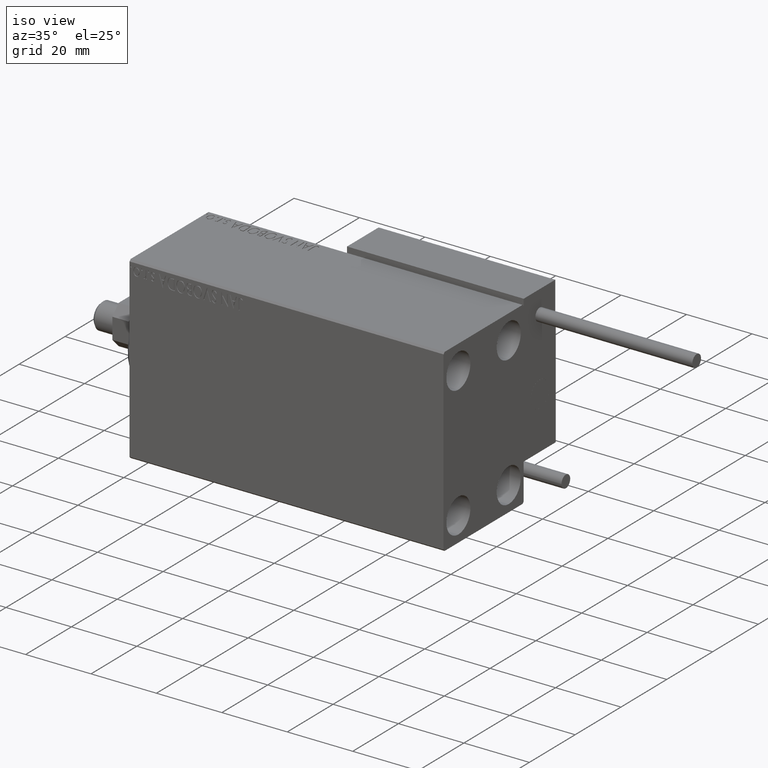
[diagram: clean part render]
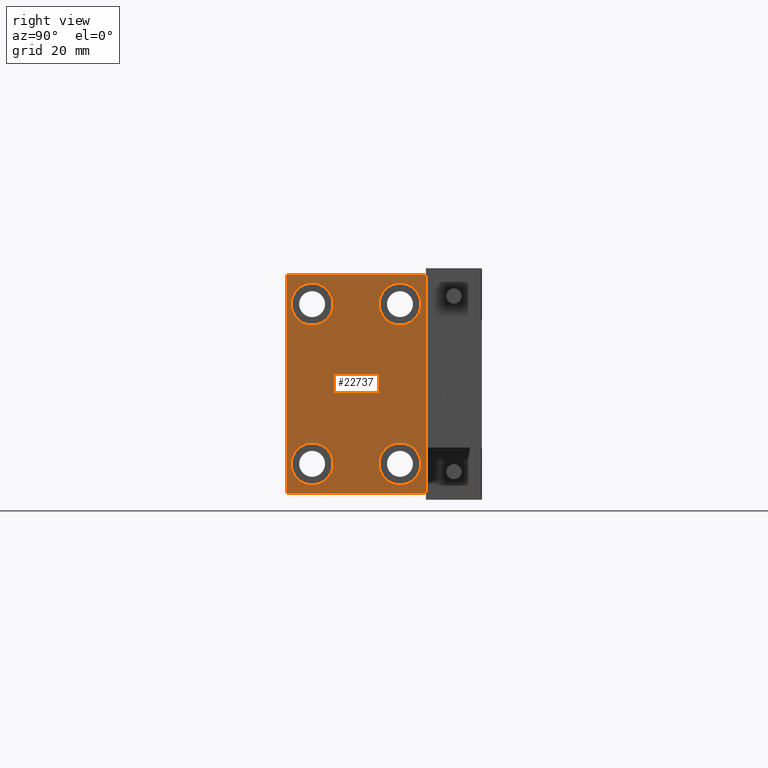
[diagram: tour spotlight — one face highlighted and labeled with its STEP entity id]
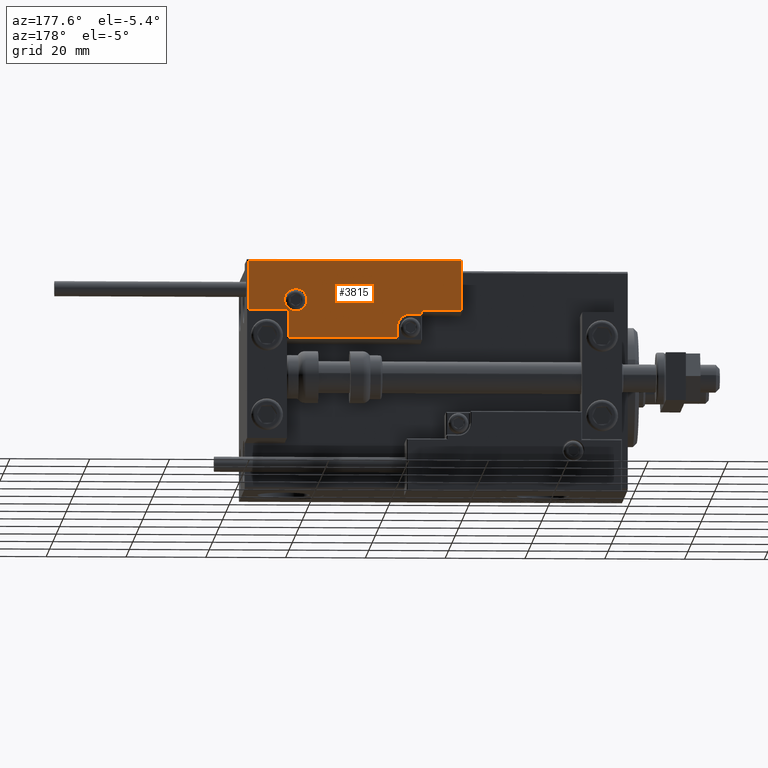
[diagram: tour spotlight — one face highlighted and labeled with its STEP entity id]
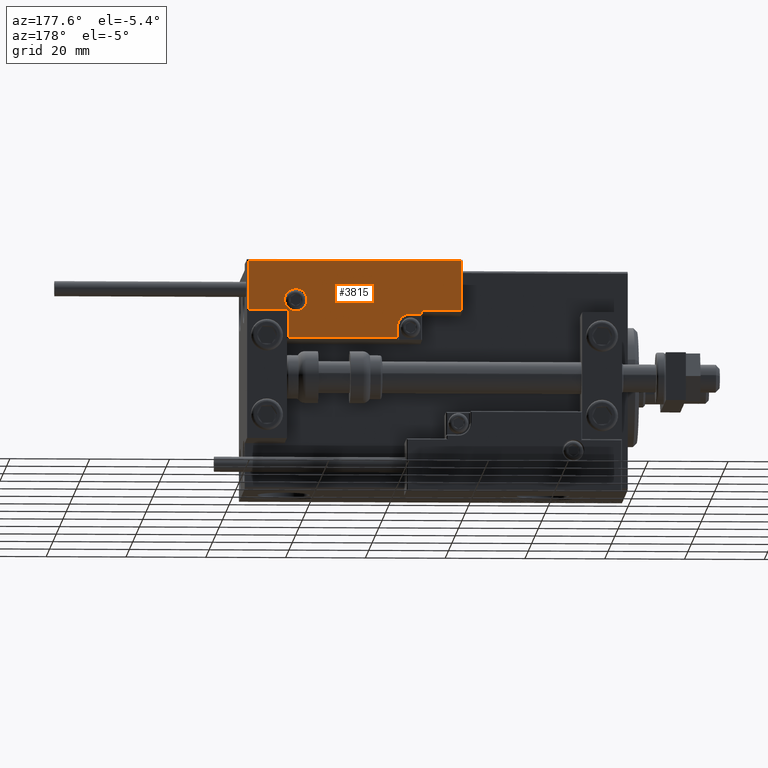
[diagram: tour spotlight — one face highlighted and labeled with its STEP entity id]
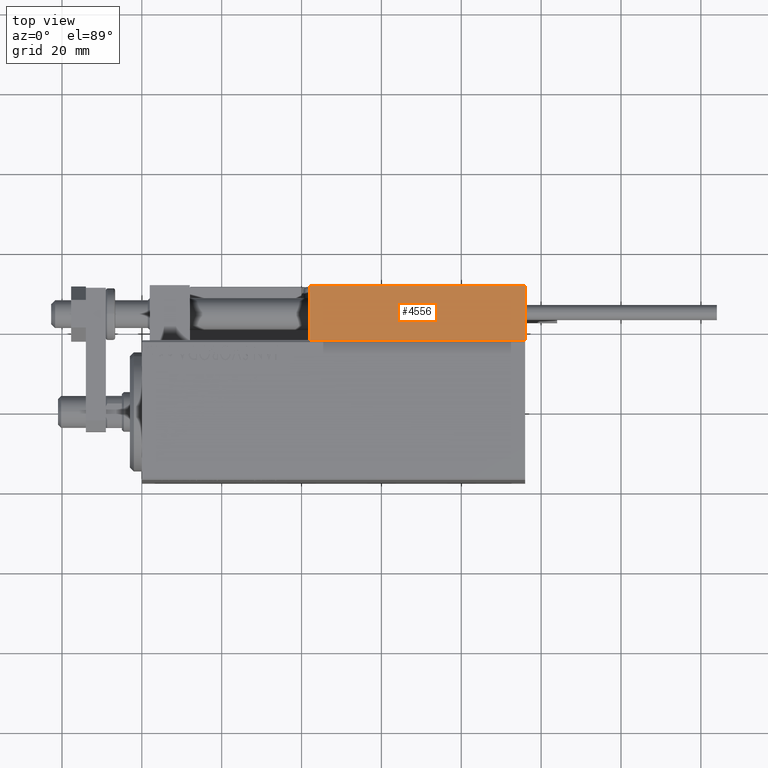
[diagram: tour spotlight — one face highlighted and labeled with its STEP entity id]
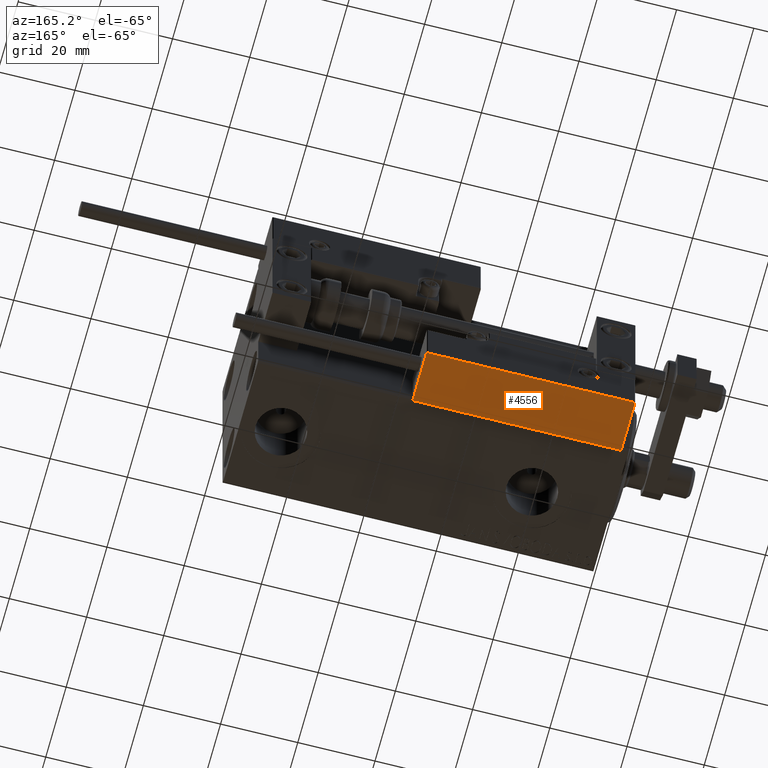
[diagram: tour spotlight — one face highlighted and labeled with its STEP entity id]
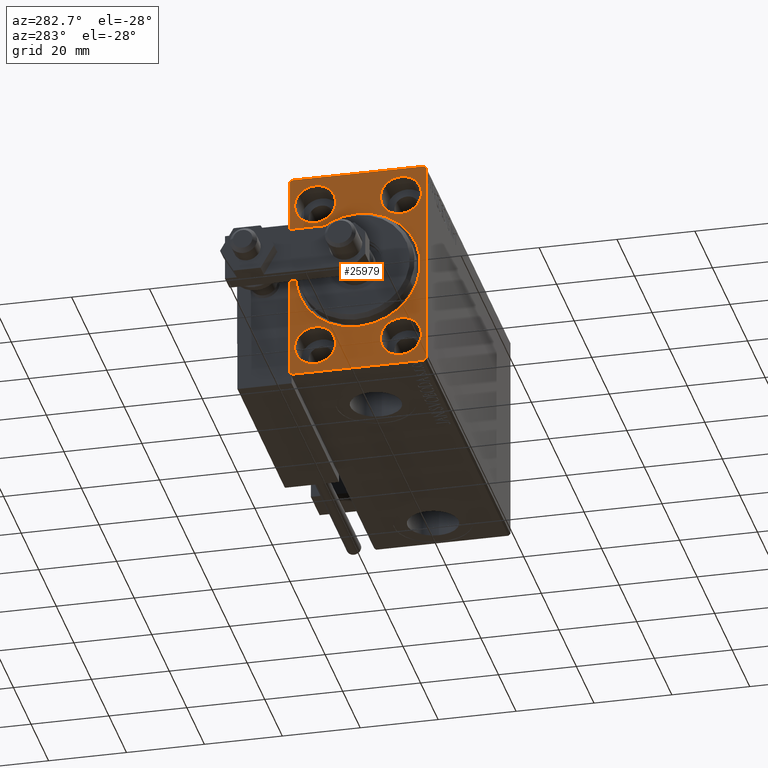
[diagram: tour spotlight — one face highlighted and labeled with its STEP entity id]
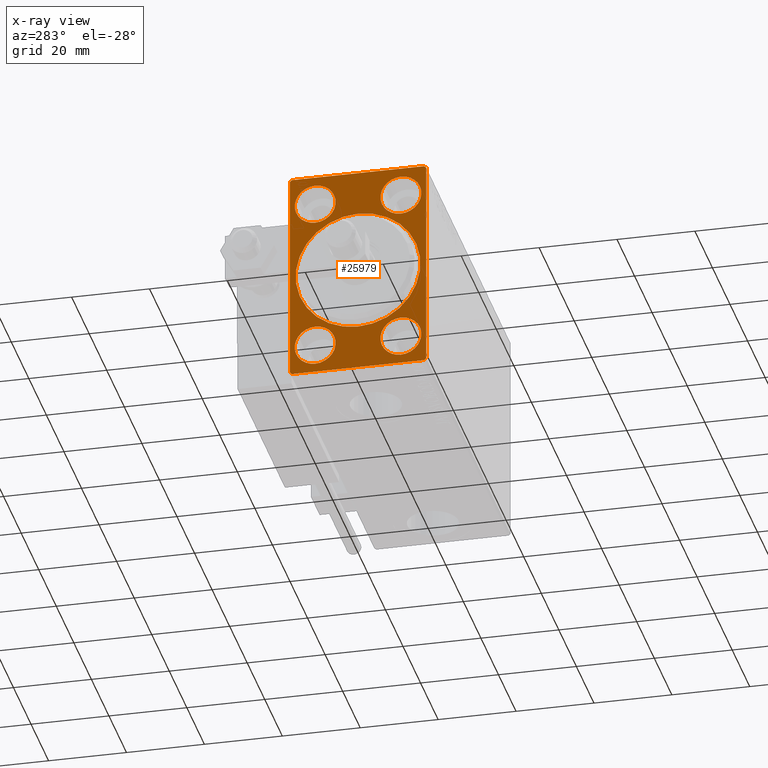
[diagram: x-ray of the same camera — body ghosted, this tour face saturated]
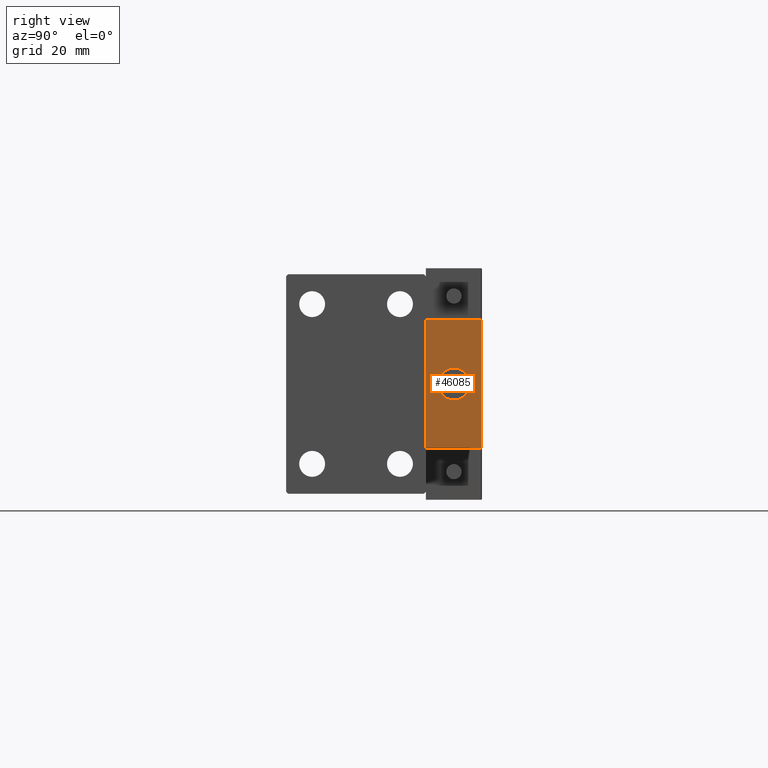
[diagram: tour spotlight — one face highlighted and labeled with its STEP entity id]
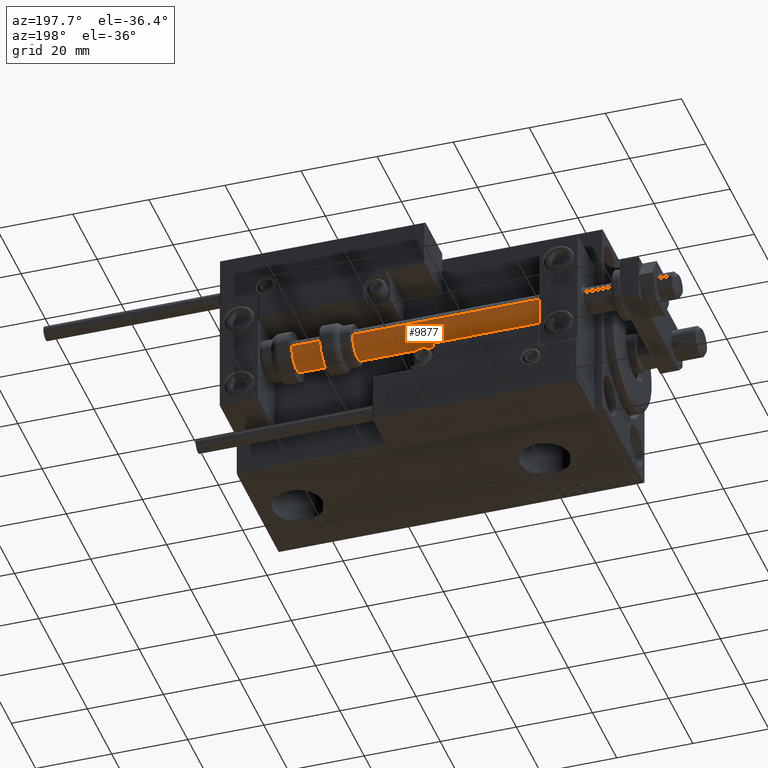
[diagram: tour spotlight — one face highlighted and labeled with its STEP entity id]
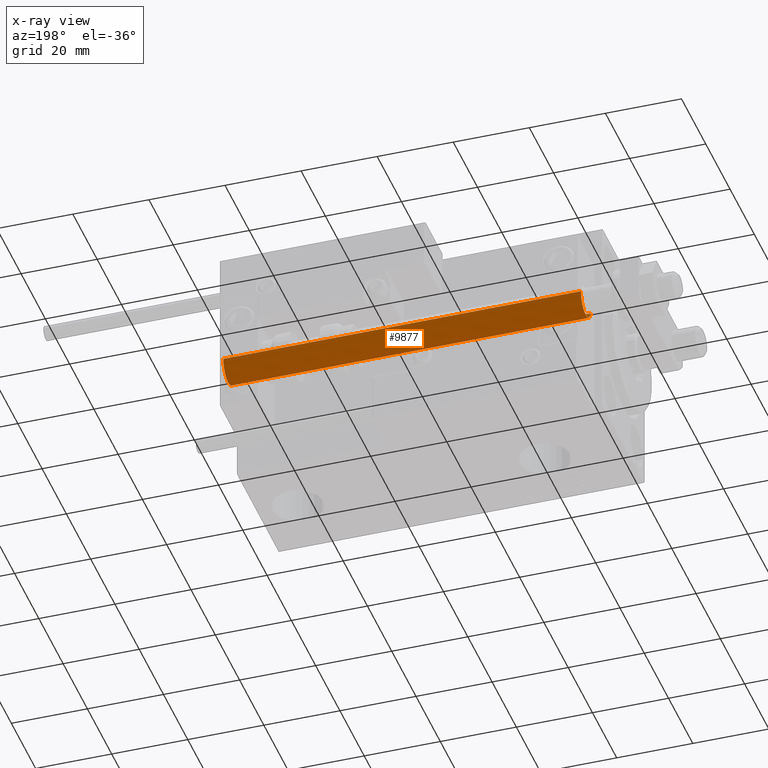
[diagram: x-ray of the same camera — body ghosted, this tour face saturated]
A machine part: a face-by-face anatomy tour. The part has 1299 B-rep faces; the first image is the clean iso view, then the 8 largest visible faces are spotlighted one at a time (largest first), each with its STEP entity span.

Face 1 — right view, entity #22737. In plain terms, the highlighted planar face has unit normal (1, 0, 0).
Definition (entity closure, byte-faithful):
#11 = DIRECTION ( 'NONE',  ( 0.000000000000000000, -0.7071067811865474617, -0.7071067811865474617 ) ) ;
#291 = DIRECTION ( 'NONE',  ( 0.000000000000000000, -1.261617073437677752E-16, 1.000000000000000000 ) ) ;
#708 = AXIS2_PLACEMENT_3D ( 'NONE', #50718, #3919, #22961 ) ;
#1073 = LINE ( 'NONE', #20865, #13286 ) ;
#1524 = EDGE_LOOP ( 'NONE', ( #29450, #24553 ) ) ;
#1738 = DIRECTION ( 'NONE',  ( 0.000000000000000000, 0.000000000000000000, 1.000000000000000000 ) ) ;
#2213 = ORIENTED_EDGE ( 'NONE', *, *, #43476, .T. ) ;
#2501 = CIRCLE ( 'NONE', #19737, 5.250000000000000888 ) ;
#2802 = DIRECTION ( 'NONE',  ( -1.000000000000000000, -0.000000000000000000, -0.000000000000000000 ) ) ;
#3061 = CARTESIAN_POINT ( 'NONE',  ( 96.00000000000000000, -11.00000000000000355, -14.75000000000000000 ) ) ;
#3131 = DIRECTION ( 'NONE',  ( 0.000000000000000000, 0.000000000000000000, 1.000000000000000000 ) ) ;
#3864 = ORIENTED_EDGE ( 'NONE', *, *, #16587, .T. ) ;
#3919 = DIRECTION ( 'NONE',  ( 1.000000000000000000, 0.000000000000000000, 0.000000000000000000 ) ) ;
#4053 = DIRECTION ( 'NONE',  ( 0.000000000000000000, 0.000000000000000000, 1.000000000000000000 ) ) ;
#4142 = CARTESIAN_POINT ( 'NONE',  ( 96.00000000000000000, 17.50000000000000711, -27.50000000000000355 ) ) ;
#5958 = CARTESIAN_POINT ( 'NONE',  ( 96.00000000000000000, -17.50000000000000000, 27.49999999999999645 ) ) ;
#6155 = DIRECTION ( 'NONE',  ( -1.000000000000000000, -0.000000000000000000, -0.000000000000000000 ) ) ;
#6266 = CARTESIAN_POINT ( 'NONE',  ( 96.00000000000000000, -17.00000000000001421, -27.50000000000000355 ) ) ;
#6402 = CARTESIAN_POINT ( 'NONE',  ( 96.00000000000000000, 11.00000000000000355, -20.00000000000000000 ) ) ;
#6890 = VECTOR ( 'NONE', #37144, 1000.000000000000000 ) ;
#7259 = CARTESIAN_POINT ( 'NONE',  ( 96.00000000000000000, -17.00000000000000000, 27.49999999999999645 ) ) ;
#9644 = VERTEX_POINT ( 'NONE', #17378 ) ;
#9787 = CARTESIAN_POINT ( 'NONE',  ( 96.00000000000000000, 11.00000000000000355, -14.75000000000000000 ) ) ;
#9825 = LINE ( 'NONE', #5958, #41458 ) ;
#10188 = EDGE_CURVE ( 'NONE', #9644, #34746, #23074, .T. ) ;
#10332 = AXIS2_PLACEMENT_3D ( 'NONE', #29275, #44195, #1738 ) ;
#10402 = FACE_BOUND ( 'NONE', #19485, .T. ) ;
#11412 = CARTESIAN_POINT ( 'NONE',  ( 96.00000000000000000, 11.00000000000000355, 20.00000000000000000 ) ) ;
#12677 = ORIENTED_EDGE ( 'NONE', *, *, #50220, .T. ) ;
#12918 = DIRECTION ( 'NONE',  ( -0.000000000000000000, 0.7071067811865474617, 0.7071067811865474617 ) ) ;
#13286 = VECTOR ( 'NONE', #12918, 1000.000000000000114 ) ;
#13796 = VERTEX_POINT ( 'NONE', #35720 ) ;
#13818 = DIRECTION ( 'NONE',  ( 0.000000000000000000, 0.000000000000000000, 1.000000000000000000 ) ) ;
#14513 = AXIS2_PLACEMENT_3D ( 'NONE', #34184, #6155, #21833 ) ;
#14964 = LINE ( 'NONE', #15703, #49664 ) ;
#14984 = DIRECTION ( 'NONE',  ( -1.000000000000000000, -0.000000000000000000, -0.000000000000000000 ) ) ;
#15314 = ORIENTED_EDGE ( 'NONE', *, *, #40935, .T. ) ;
#15400 = CIRCLE ( 'NONE', #14513, 5.250000000000000888 ) ;
#15580 = CARTESIAN_POINT ( 'NONE',  ( 96.00000000000000000, 17.50000000000000000, 27.50000000000000355 ) ) ;
#15703 = CARTESIAN_POINT ( 'NONE',  ( 96.00000000000000000, -22.24999999999999645, 22.24999999999999645 ) ) ;
#15868 = VECTOR ( 'NONE', #291, 1000.000000000000000 ) ;
#15902 = DIRECTION ( 'NONE',  ( -1.000000000000000000, -0.000000000000000000, -0.000000000000000000 ) ) ;
#16587 = EDGE_CURVE ( 'NONE', #28238, #26588, #29420, .T. ) ;
#17337 = CARTESIAN_POINT ( 'NONE',  ( 96.00000000000000000, -11.00000000000000355, -25.25000000000000000 ) ) ;
#17378 = CARTESIAN_POINT ( 'NONE',  ( 96.00000000000000000, -11.00000000000000355, 25.25000000000000000 ) ) ;
#18353 = PLANE ( 'NONE',  #708 ) ;
#18415 = ORIENTED_EDGE ( 'NONE', *, *, #49363, .T. ) ;
#18840 = VERTEX_POINT ( 'NONE', #26567 ) ;
#19283 = EDGE_LOOP ( 'NONE', ( #2213, #49223 ) ) ;
#19485 = EDGE_LOOP ( 'NONE', ( #12677, #28418 ) ) ;
#19598 = VERTEX_POINT ( 'NONE', #17337 ) ;
#19737 = AXIS2_PLACEMENT_3D ( 'NONE', #6402, #2802, #37543 ) ;
#19994 = CARTESIAN_POINT ( 'NONE',  ( 96.00000000000000000, 11.00000000000000355, 20.00000000000000000 ) ) ;
#20395 = DIRECTION ( 'NONE',  ( -0.000000000000000000, -0.7071067811865474617, 0.7071067811865474617 ) ) ;
#20865 = CARTESIAN_POINT ( 'NONE',  ( 96.00000000000000000, 22.24999999999999645, -22.24999999999999645 ) ) ;
#21438 = CIRCLE ( 'NONE', #28840, 5.250000000000000888 ) ;
#21833 = DIRECTION ( 'NONE',  ( 0.000000000000000000, 0.000000000000000000, 1.000000000000000000 ) ) ;
#22021 = CARTESIAN_POINT ( 'NONE',  ( 96.00000000000000000, 11.00000000000000355, -20.00000000000000000 ) ) ;
#22298 = VERTEX_POINT ( 'NONE', #29242 ) ;
#22737 = ADVANCED_FACE ( 'NONE', ( #29946, #45632, #10402, #26079, #33044 ), #18353, .T. ) ;
#22847 = EDGE_LOOP ( 'NONE', ( #45378, #39727, #18415, #25769, #3864, #40867, #28760, #29645 ) ) ;
#22961 = DIRECTION ( 'NONE',  ( 0.000000000000000000, 0.000000000000000000, -1.000000000000000000 ) ) ;
#23074 = CIRCLE ( 'NONE', #30509, 5.250000000000000888 ) ;
#23287 = DIRECTION ( 'NONE',  ( 0.000000000000000000, -1.000000000000000000, -1.982541115402065110E-16 ) ) ;
#23545 = VERTEX_POINT ( 'NONE', #3061 ) ;
#23849 = DIRECTION ( 'NONE',  ( 0.000000000000000000, 0.000000000000000000, -1.000000000000000000 ) ) ;
#24308 = VERTEX_POINT ( 'NONE', #32757 ) ;
#24517 = CARTESIAN_POINT ( 'NONE',  ( 96.00000000000000000, -11.00000000000000355, -20.00000000000000000 ) ) ;
#24553 = ORIENTED_EDGE ( 'NONE', *, *, #30639, .T. ) ;
#25769 = ORIENTED_EDGE ( 'NONE', *, *, #31521, .T. ) ;
#26079 = FACE_BOUND ( 'NONE', #35005, .T. ) ;
#26523 = DIRECTION ( 'NONE',  ( -0.000000000000000000, 0.7071067811865378028, -0.7071067811865573427 ) ) ;
#26567 = CARTESIAN_POINT ( 'NONE',  ( 96.00000000000000000, 17.50000000000000000, 27.00000000000001776 ) ) ;
#26588 = VERTEX_POINT ( 'NONE', #43382 ) ;
#26682 = CARTESIAN_POINT ( 'NONE',  ( 96.00000000000000000, 11.00000000000000355, -25.25000000000000000 ) ) ;
#27104 = DIRECTION ( 'NONE',  ( -1.000000000000000000, -0.000000000000000000, -0.000000000000000000 ) ) ;
#28238 = VERTEX_POINT ( 'NONE', #6266 ) ;
#28271 = CIRCLE ( 'NONE', #38975, 5.250000000000000888 ) ;
#28418 = ORIENTED_EDGE ( 'NONE', *, *, #38353, .T. ) ;
#28441 = VERTEX_POINT ( 'NONE', #33229 ) ;
#28484 = EDGE_CURVE ( 'NONE', #26588, #45848, #1073, .T. ) ;
#28760 = ORIENTED_EDGE ( 'NONE', *, *, #35510, .T. ) ;
#28840 = AXIS2_PLACEMENT_3D ( 'NONE', #22021, #33370, #13818 ) ;
#28847 = CARTESIAN_POINT ( 'NONE',  ( 96.00000000000000000, -17.50000000000000000, -27.00000000000000355 ) ) ;
#29242 = CARTESIAN_POINT ( 'NONE',  ( 96.00000000000000000, 11.00000000000000355, 25.25000000000000000 ) ) ;
#29275 = CARTESIAN_POINT ( 'NONE',  ( 96.00000000000000000, -11.00000000000000355, -20.00000000000000000 ) ) ;
#29420 = LINE ( 'NONE', #49205, #6890 ) ;
#29450 = ORIENTED_EDGE ( 'NONE', *, *, #30229, .T. ) ;
#29645 = ORIENTED_EDGE ( 'NONE', *, *, #35265, .T. ) ;
#29946 = FACE_BOUND ( 'NONE', #1524, .T. ) ;
#30229 = EDGE_CURVE ( 'NONE', #41693, #47741, #2501, .T. ) ;
#30509 = AXIS2_PLACEMENT_3D ( 'NONE', #50430, #14984, #3131 ) ;
#30639 = EDGE_CURVE ( 'NONE', #47741, #41693, #21438, .T. ) ;
#30712 = EDGE_CURVE ( 'NONE', #24308, #42406, #50538, .T. ) ;
#31521 = EDGE_CURVE ( 'NONE', #48597, #28238, #37858, .T. ) ;
#32757 = CARTESIAN_POINT ( 'NONE',  ( 96.00000000000000000, 17.00000000000001421, 27.50000000000000355 ) ) ;
#33015 = DIRECTION ( 'NONE',  ( -1.000000000000000000, -0.000000000000000000, -0.000000000000000000 ) ) ;
#33044 = FACE_OUTER_BOUND ( 'NONE', #22847, .T. ) ;
#33229 = CARTESIAN_POINT ( 'NONE',  ( 96.00000000000000000, 11.00000000000000355, 14.75000000000000000 ) ) ;
#33370 = DIRECTION ( 'NONE',  ( -1.000000000000000000, -0.000000000000000000, -0.000000000000000000 ) ) ;
#34184 = CARTESIAN_POINT ( 'NONE',  ( 96.00000000000000000, -11.00000000000000355, 20.00000000000000000 ) ) ;
#34330 = CARTESIAN_POINT ( 'NONE',  ( 96.00000000000000000, 17.50000000000000711, -26.99999999999998934 ) ) ;
#34746 = VERTEX_POINT ( 'NONE', #40507 ) ;
#35005 = EDGE_LOOP ( 'NONE', ( #48095, #15314 ) ) ;
#35210 = EDGE_CURVE ( 'NONE', #19598, #23545, #38007, .T. ) ;
#35265 = EDGE_CURVE ( 'NONE', #18840, #24308, #48428, .T. ) ;
#35510 = EDGE_CURVE ( 'NONE', #45848, #18840, #43257, .T. ) ;
#35537 = AXIS2_PLACEMENT_3D ( 'NONE', #24517, #33015, #39712 ) ;
#35562 = DIRECTION ( 'NONE',  ( 0.000000000000000000, 0.000000000000000000, 1.000000000000000000 ) ) ;
#35720 = CARTESIAN_POINT ( 'NONE',  ( 96.00000000000000000, -17.50000000000000000, 26.99999999999999645 ) ) ;
#35761 = CIRCLE ( 'NONE', #10332, 5.250000000000000888 ) ;
#37144 = DIRECTION ( 'NONE',  ( 0.000000000000000000, 1.000000000000000000, 0.000000000000000000 ) ) ;
#37543 = DIRECTION ( 'NONE',  ( 0.000000000000000000, 0.000000000000000000, 1.000000000000000000 ) ) ;
#37858 = LINE ( 'NONE', #42722, #42826 ) ;
#38007 = CIRCLE ( 'NONE', #35537, 5.250000000000000888 ) ;
#38072 = AXIS2_PLACEMENT_3D ( 'NONE', #11412, #27104, #35562 ) ;
#38353 = EDGE_CURVE ( 'NONE', #22298, #28441, #28271, .T. ) ;
#38975 = AXIS2_PLACEMENT_3D ( 'NONE', #19994, #15902, #4053 ) ;
#39712 = DIRECTION ( 'NONE',  ( 0.000000000000000000, 0.000000000000000000, 1.000000000000000000 ) ) ;
#39727 = ORIENTED_EDGE ( 'NONE', *, *, #50521, .T. ) ;
#40507 = CARTESIAN_POINT ( 'NONE',  ( 96.00000000000000000, -11.00000000000000355, 14.75000000000000000 ) ) ;
#40867 = ORIENTED_EDGE ( 'NONE', *, *, #28484, .T. ) ;
#40935 = EDGE_CURVE ( 'NONE', #23545, #19598, #35761, .T. ) ;
#41458 = VECTOR ( 'NONE', #23849, 1000.000000000000000 ) ;
#41693 = VERTEX_POINT ( 'NONE', #26682 ) ;
#42406 = VERTEX_POINT ( 'NONE', #7259 ) ;
#42722 = CARTESIAN_POINT ( 'NONE',  ( 96.00000000000000000, -22.25000000000024869, -22.24999999999963407 ) ) ;
#42826 = VECTOR ( 'NONE', #26523, 1000.000000000000000 ) ;
#42962 = VECTOR ( 'NONE', #20395, 1000.000000000000114 ) ;
#43257 = LINE ( 'NONE', #4142, #15868 ) ;
#43382 = CARTESIAN_POINT ( 'NONE',  ( 96.00000000000000000, 16.99999999999999289, -27.50000000000000355 ) ) ;
#43476 = EDGE_CURVE ( 'NONE', #34746, #9644, #15400, .T. ) ;
#44074 = CARTESIAN_POINT ( 'NONE',  ( 96.00000000000000000, 22.25000000000000711, 22.25000000000000711 ) ) ;
#44195 = DIRECTION ( 'NONE',  ( -1.000000000000000000, -0.000000000000000000, -0.000000000000000000 ) ) ;
#45378 = ORIENTED_EDGE ( 'NONE', *, *, #30712, .T. ) ;
#45566 = CIRCLE ( 'NONE', #38072, 5.250000000000000888 ) ;
#45632 = FACE_BOUND ( 'NONE', #19283, .T. ) ;
#45848 = VERTEX_POINT ( 'NONE', #34330 ) ;
#47741 = VERTEX_POINT ( 'NONE', #9787 ) ;
#48095 = ORIENTED_EDGE ( 'NONE', *, *, #35210, .T. ) ;
#48428 = LINE ( 'NONE', #44074, #42962 ) ;
#48597 = VERTEX_POINT ( 'NONE', #28847 ) ;
#49205 = CARTESIAN_POINT ( 'NONE',  ( 96.00000000000000000, -17.50000000000000000, -27.50000000000000355 ) ) ;
#49223 = ORIENTED_EDGE ( 'NONE', *, *, #10188, .T. ) ;
#49363 = EDGE_CURVE ( 'NONE', #13796, #48597, #9825, .T. ) ;
#49664 = VECTOR ( 'NONE', #11, 1000.000000000000114 ) ;
#50167 = VECTOR ( 'NONE', #23287, 1000.000000000000000 ) ;
#50220 = EDGE_CURVE ( 'NONE', #28441, #22298, #45566, .T. ) ;
#50430 = CARTESIAN_POINT ( 'NONE',  ( 96.00000000000000000, -11.00000000000000355, 20.00000000000000000 ) ) ;
#50521 = EDGE_CURVE ( 'NONE', #42406, #13796, #14964, .T. ) ;
#50538 = LINE ( 'NONE', #15580, #50167 ) ;
#50718 = CARTESIAN_POINT ( 'NONE',  ( 96.00000000000000000, 0.000000000000000000, 0.000000000000000000 ) ) ;

Face 2 — auxiliary view, entity #3815. In plain terms, the highlighted planar face has unit normal (-0, 1, -0).
Definition (entity closure, byte-faithful):
#182 = LINE ( 'NONE', #15120, #9127 ) ;
#265 = EDGE_CURVE ( 'NONE', #46875, #25497, #49112, .T. ) ;
#2063 = CARTESIAN_POINT ( 'NONE',  ( -26.99999999999993605, 19.70000000000002061, 14.00000000000000000 ) ) ;
#2108 = ORIENTED_EDGE ( 'NONE', *, *, #22263, .T. ) ;
#3009 = VERTEX_POINT ( 'NONE', #49816 ) ;
#3187 = EDGE_LOOP ( 'NONE', ( #41830, #48720, #42376, #7178, #10780, #12301, #3939, #38789, #16947, #44119, #2108 ) ) ;
#3587 = CARTESIAN_POINT ( 'NONE',  ( 10.69999999999999929, 3.000000000000003109, 14.00000000000000000 ) ) ;
#3815 = ADVANCED_FACE ( 'NONE', ( #23497, #43807 ), #27359, .T. ) ;
#3902 = EDGE_CURVE ( 'NONE', #21145, #23909, #35319, .T. ) ;
#3939 = ORIENTED_EDGE ( 'NONE', *, *, #37735, .T. ) ;
#4032 = DIRECTION ( 'NONE',  ( 1.000000000000000000, 0.000000000000000000, 0.000000000000000000 ) ) ;
#6269 = CARTESIAN_POINT ( 'NONE',  ( -17.59999999999994813, 9.800000000000004263, 14.00000000000000000 ) ) ;
#6355 = CARTESIAN_POINT ( 'NONE',  ( 26.70000000000006324, 19.70000000000001705, 14.00000000000000000 ) ) ;
#6906 = VECTOR ( 'NONE', #15026, 1000.000000000000000 ) ;
#7178 = ORIENTED_EDGE ( 'NONE', *, *, #3902, .T. ) ;
#8314 = CARTESIAN_POINT ( 'NONE',  ( 0.000000000000000000, 0.000000000000000000, 14.00000000000000000 ) ) ;
#9127 = VECTOR ( 'NONE', #27451, 1000.000000000000000 ) ;
#9507 = DIRECTION ( 'NONE',  ( 0.000000000000000000, -1.000000000000000000, 0.000000000000000000 ) ) ;
#10071 = DIRECTION ( 'NONE',  ( -8.006416042969869188E-16, -1.000000000000000000, 0.000000000000000000 ) ) ;
#10780 = ORIENTED_EDGE ( 'NONE', *, *, #14317, .T. ) ;
#10827 = LINE ( 'NONE', #33479, #26462 ) ;
#11789 = VERTEX_POINT ( 'NONE', #6269 ) ;
#12103 = EDGE_CURVE ( 'NONE', #25497, #50201, #10827, .T. ) ;
#12301 = ORIENTED_EDGE ( 'NONE', *, *, #50596, .T. ) ;
#12920 = VECTOR ( 'NONE', #35540, 1000.000000000000000 ) ;
#14317 = EDGE_CURVE ( 'NONE', #23909, #29379, #40487, .T. ) ;
#14842 = CARTESIAN_POINT ( 'NONE',  ( -11.99999999999994849, 9.800000000000004263, 14.00000000000000000 ) ) ;
#15026 = DIRECTION ( 'NONE',  ( 1.000000000000000000, -1.734723475976796001E-16, 0.000000000000000000 ) ) ;
#15120 = CARTESIAN_POINT ( 'NONE',  ( 26.70000000000006324, 20.00000000000001776, 14.00000000000000000 ) ) ;
#15376 = LINE ( 'NONE', #27711, #37695 ) ;
#15609 = CARTESIAN_POINT ( 'NONE',  ( 16.69999999999999929, 7.300000000000009592, 14.00000000000000000 ) ) ;
#16085 = CARTESIAN_POINT ( 'NONE',  ( 10.69999999999999929, 3.000000000000003109, 14.00000000000000000 ) ) ;
#16732 = DIRECTION ( 'NONE',  ( 9.912705577010318647E-16, 1.000000000000000000, 0.000000000000000000 ) ) ;
#16947 = ORIENTED_EDGE ( 'NONE', *, *, #265, .T. ) ;
#17720 = ORIENTED_EDGE ( 'NONE', *, *, #22331, .T. ) ;
#17941 = VECTOR ( 'NONE', #40903, 1000.000000000000000 ) ;
#18977 = EDGE_CURVE ( 'NONE', #28793, #23228, #23700, .T. ) ;
#19206 = DIRECTION ( 'NONE',  ( 0.000000000000000000, -0.000000000000000000, -1.000000000000000000 ) ) ;
#19415 = DIRECTION ( 'NONE',  ( -0.000000000000000000, 1.000000000000000000, -0.000000000000000000 ) ) ;
#20456 = EDGE_CURVE ( 'NONE', #23228, #21145, #23784, .T. ) ;
#20486 = CARTESIAN_POINT ( 'NONE',  ( -14.79999999999994920, 9.800000000000004263, 14.00000000000000000 ) ) ;
#21060 = CARTESIAN_POINT ( 'NONE',  ( -16.69999999999999218, 3.252606517456513302E-15, 14.00000000000000000 ) ) ;
#21145 = VERTEX_POINT ( 'NONE', #3587 ) ;
#21146 = CARTESIAN_POINT ( 'NONE',  ( 13.99999999999999822, 3.000000000000002665, 14.00000000000000000 ) ) ;
#21386 = EDGE_CURVE ( 'NONE', #38761, #11789, #27798, .T. ) ;
#21545 = CARTESIAN_POINT ( 'NONE',  ( -26.69999999999993534, 19.70000000000002061, 14.00000000000000000 ) ) ;
#22031 = AXIS2_PLACEMENT_3D ( 'NONE', #46485, #19206, #4032 ) ;
#22091 = EDGE_CURVE ( 'NONE', #3009, #28793, #24925, .T. ) ;
#22093 = ORIENTED_EDGE ( 'NONE', *, *, #21386, .T. ) ;
#22263 = EDGE_CURVE ( 'NONE', #50201, #3009, #15376, .T. ) ;
#22331 = EDGE_CURVE ( 'NONE', #11789, #38761, #38490, .T. ) ;
#23228 = VERTEX_POINT ( 'NONE', #26855 ) ;
#23497 = FACE_BOUND ( 'NONE', #46996, .T. ) ;
#23700 = LINE ( 'NONE', #47873, #12920 ) ;
#23784 = LINE ( 'NONE', #16085, #45834 ) ;
#23909 = VERTEX_POINT ( 'NONE', #49245 ) ;
#24536 = AXIS2_PLACEMENT_3D ( 'NONE', #20486, #28481, #44669 ) ;
#24925 = LINE ( 'NONE', #21060, #47506 ) ;
#25289 = CARTESIAN_POINT ( 'NONE',  ( 17.00000000000000000, 6.300000000000003375, 14.00000000000000000 ) ) ;
#25497 = VERTEX_POINT ( 'NONE', #21545 ) ;
#26279 = AXIS2_PLACEMENT_3D ( 'NONE', #8314, #31482, #47144 ) ;
#26307 = CARTESIAN_POINT ( 'NONE',  ( 26.70000000000006324, 7.300000000000007816, 14.00000000000000000 ) ) ;
#26462 = VECTOR ( 'NONE', #10071, 1000.000000000000000 ) ;
#26597 = VERTEX_POINT ( 'NONE', #15609 ) ;
#26855 = CARTESIAN_POINT ( 'NONE',  ( 10.69999999999999929, 0.3000000000000032085, 14.00000000000000000 ) ) ;
#26948 = DIRECTION ( 'NONE',  ( 1.000000000000000000, -1.734723475976815230E-16, 0.000000000000000000 ) ) ;
#27260 = CARTESIAN_POINT ( 'NONE',  ( -16.69999999999999218, 0.3000000000000032085, 14.00000000000000000 ) ) ;
#27359 = PLANE ( 'NONE',  #26279 ) ;
#27451 = DIRECTION ( 'NONE',  ( 0.000000000000000000, 1.000000000000000000, -0.000000000000000000 ) ) ;
#27711 = CARTESIAN_POINT ( 'NONE',  ( -16.99999999999999289, 7.300000000000003375, 14.00000000000000000 ) ) ;
#27798 = CIRCLE ( 'NONE', #22031, 2.800000000000000266 ) ;
#28033 = EDGE_CURVE ( 'NONE', #36282, #46875, #182, .T. ) ;
#28481 = DIRECTION ( 'NONE',  ( 0.000000000000000000, -0.000000000000000000, -1.000000000000000000 ) ) ;
#28793 = VERTEX_POINT ( 'NONE', #27260 ) ;
#29379 = VERTEX_POINT ( 'NONE', #50331 ) ;
#29410 = DIRECTION ( 'NONE',  ( 1.000000000000000000, 5.782411586589357639E-16, -0.000000000000000000 ) ) ;
#31482 = DIRECTION ( 'NONE',  ( -0.000000000000000000, 0.000000000000000000, 1.000000000000000000 ) ) ;
#33119 = VECTOR ( 'NONE', #29410, 1000.000000000000000 ) ;
#33479 = CARTESIAN_POINT ( 'NONE',  ( -26.69999999999994600, 7.000000000000005329, 14.00000000000000000 ) ) ;
#33508 = DIRECTION ( 'NONE',  ( 1.000000000000000000, 0.000000000000000000, 0.000000000000000000 ) ) ;
#35071 = CARTESIAN_POINT ( 'NONE',  ( 27.00000000000006395, 7.300000000000007816, 14.00000000000000000 ) ) ;
#35319 = CIRCLE ( 'NONE', #41898, 3.299999999999997158 ) ;
#35540 = DIRECTION ( 'NONE',  ( 1.000000000000000000, -0.000000000000000000, 0.000000000000000000 ) ) ;
#35763 = CARTESIAN_POINT ( 'NONE',  ( 16.69999999999999929, 7.000000000000009770, 14.00000000000000000 ) ) ;
#36282 = VERTEX_POINT ( 'NONE', #26307 ) ;
#37695 = VECTOR ( 'NONE', #26948, 1000.000000000000000 ) ;
#37735 = EDGE_CURVE ( 'NONE', #26597, #36282, #43040, .T. ) ;
#38490 = CIRCLE ( 'NONE', #24536, 2.800000000000000266 ) ;
#38761 = VERTEX_POINT ( 'NONE', #14842 ) ;
#38789 = ORIENTED_EDGE ( 'NONE', *, *, #28033, .T. ) ;
#38933 = CARTESIAN_POINT ( 'NONE',  ( -26.69999999999994600, 7.300000000000005151, 14.00000000000000000 ) ) ;
#40133 = LINE ( 'NONE', #35763, #49549 ) ;
#40487 = LINE ( 'NONE', #25289, #33119 ) ;
#40903 = DIRECTION ( 'NONE',  ( -1.000000000000000000, 6.424901762877063495E-17, -0.000000000000000000 ) ) ;
#41830 = ORIENTED_EDGE ( 'NONE', *, *, #22091, .T. ) ;
#41898 = AXIS2_PLACEMENT_3D ( 'NONE', #21146, #49175, #33508 ) ;
#42376 = ORIENTED_EDGE ( 'NONE', *, *, #20456, .T. ) ;
#43040 = LINE ( 'NONE', #35071, #6906 ) ;
#43807 = FACE_OUTER_BOUND ( 'NONE', #3187, .T. ) ;
#44119 = ORIENTED_EDGE ( 'NONE', *, *, #12103, .T. ) ;
#44669 = DIRECTION ( 'NONE',  ( 1.000000000000000000, 0.000000000000000000, 0.000000000000000000 ) ) ;
#45834 = VECTOR ( 'NONE', #19415, 1000.000000000000000 ) ;
#46485 = CARTESIAN_POINT ( 'NONE',  ( -14.79999999999994920, 9.800000000000004263, 14.00000000000000000 ) ) ;
#46875 = VERTEX_POINT ( 'NONE', #6355 ) ;
#46996 = EDGE_LOOP ( 'NONE', ( #22093, #17720 ) ) ;
#47144 = DIRECTION ( 'NONE',  ( 1.000000000000000000, 0.000000000000000000, 0.000000000000000000 ) ) ;
#47506 = VECTOR ( 'NONE', #9507, 1000.000000000000000 ) ;
#47873 = CARTESIAN_POINT ( 'NONE',  ( 11.00000000000000000, 0.3000000000000032085, 14.00000000000000000 ) ) ;
#48720 = ORIENTED_EDGE ( 'NONE', *, *, #18977, .T. ) ;
#49112 = LINE ( 'NONE', #2063, #17941 ) ;
#49175 = DIRECTION ( 'NONE',  ( 0.000000000000000000, -0.000000000000000000, -1.000000000000000000 ) ) ;
#49245 = CARTESIAN_POINT ( 'NONE',  ( 13.99999999999999822, 6.300000000000001599, 14.00000000000000000 ) ) ;
#49549 = VECTOR ( 'NONE', #16732, 1000.000000000000000 ) ;
#49816 = CARTESIAN_POINT ( 'NONE',  ( -16.69999999999999218, 7.300000000000003375, 14.00000000000000000 ) ) ;
#50201 = VERTEX_POINT ( 'NONE', #38933 ) ;
#50331 = CARTESIAN_POINT ( 'NONE',  ( 16.69999999999999929, 6.300000000000003375, 14.00000000000000000 ) ) ;
#50596 = EDGE_CURVE ( 'NONE', #29379, #26597, #40133, .T. ) ;

Face 3 — auxiliary view, entity #3815. In plain terms, the highlighted planar face has unit normal (0, 1, -0).
Definition (entity closure, byte-faithful):
#182 = LINE ( 'NONE', #15120, #9127 ) ;
#265 = EDGE_CURVE ( 'NONE', #46875, #25497, #49112, .T. ) ;
#2063 = CARTESIAN_POINT ( 'NONE',  ( -26.99999999999993605, 19.70000000000002061, 14.00000000000000000 ) ) ;
#2108 = ORIENTED_EDGE ( 'NONE', *, *, #22263, .T. ) ;
#3009 = VERTEX_POINT ( 'NONE', #49816 ) ;
#3187 = EDGE_LOOP ( 'NONE', ( #41830, #48720, #42376, #7178, #10780, #12301, #3939, #38789, #16947, #44119, #2108 ) ) ;
#3587 = CARTESIAN_POINT ( 'NONE',  ( 10.69999999999999929, 3.000000000000003109, 14.00000000000000000 ) ) ;
#3815 = ADVANCED_FACE ( 'NONE', ( #23497, #43807 ), #27359, .T. ) ;
#3902 = EDGE_CURVE ( 'NONE', #21145, #23909, #35319, .T. ) ;
#3939 = ORIENTED_EDGE ( 'NONE', *, *, #37735, .T. ) ;
#4032 = DIRECTION ( 'NONE',  ( 1.000000000000000000, 0.000000000000000000, 0.000000000000000000 ) ) ;
#6269 = CARTESIAN_POINT ( 'NONE',  ( -17.59999999999994813, 9.800000000000004263, 14.00000000000000000 ) ) ;
#6355 = CARTESIAN_POINT ( 'NONE',  ( 26.70000000000006324, 19.70000000000001705, 14.00000000000000000 ) ) ;
#6906 = VECTOR ( 'NONE', #15026, 1000.000000000000000 ) ;
#7178 = ORIENTED_EDGE ( 'NONE', *, *, #3902, .T. ) ;
#8314 = CARTESIAN_POINT ( 'NONE',  ( 0.000000000000000000, 0.000000000000000000, 14.00000000000000000 ) ) ;
#9127 = VECTOR ( 'NONE', #27451, 1000.000000000000000 ) ;
#9507 = DIRECTION ( 'NONE',  ( 0.000000000000000000, -1.000000000000000000, 0.000000000000000000 ) ) ;
#10071 = DIRECTION ( 'NONE',  ( -8.006416042969869188E-16, -1.000000000000000000, 0.000000000000000000 ) ) ;
#10780 = ORIENTED_EDGE ( 'NONE', *, *, #14317, .T. ) ;
#10827 = LINE ( 'NONE', #33479, #26462 ) ;
#11789 = VERTEX_POINT ( 'NONE', #6269 ) ;
#12103 = EDGE_CURVE ( 'NONE', #25497, #50201, #10827, .T. ) ;
#12301 = ORIENTED_EDGE ( 'NONE', *, *, #50596, .T. ) ;
#12920 = VECTOR ( 'NONE', #35540, 1000.000000000000000 ) ;
#14317 = EDGE_CURVE ( 'NONE', #23909, #29379, #40487, .T. ) ;
#14842 = CARTESIAN_POINT ( 'NONE',  ( -11.99999999999994849, 9.800000000000004263, 14.00000000000000000 ) ) ;
#15026 = DIRECTION ( 'NONE',  ( 1.000000000000000000, -1.734723475976796001E-16, 0.000000000000000000 ) ) ;
#15120 = CARTESIAN_POINT ( 'NONE',  ( 26.70000000000006324, 20.00000000000001776, 14.00000000000000000 ) ) ;
#15376 = LINE ( 'NONE', #27711, #37695 ) ;
#15609 = CARTESIAN_POINT ( 'NONE',  ( 16.69999999999999929, 7.300000000000009592, 14.00000000000000000 ) ) ;
#16085 = CARTESIAN_POINT ( 'NONE',  ( 10.69999999999999929, 3.000000000000003109, 14.00000000000000000 ) ) ;
#16732 = DIRECTION ( 'NONE',  ( 9.912705577010318647E-16, 1.000000000000000000, 0.000000000000000000 ) ) ;
#16947 = ORIENTED_EDGE ( 'NONE', *, *, #265, .T. ) ;
#17720 = ORIENTED_EDGE ( 'NONE', *, *, #22331, .T. ) ;
#17941 = VECTOR ( 'NONE', #40903, 1000.000000000000000 ) ;
#18977 = EDGE_CURVE ( 'NONE', #28793, #23228, #23700, .T. ) ;
#19206 = DIRECTION ( 'NONE',  ( 0.000000000000000000, -0.000000000000000000, -1.000000000000000000 ) ) ;
#19415 = DIRECTION ( 'NONE',  ( -0.000000000000000000, 1.000000000000000000, -0.000000000000000000 ) ) ;
#20456 = EDGE_CURVE ( 'NONE', #23228, #21145, #23784, .T. ) ;
#20486 = CARTESIAN_POINT ( 'NONE',  ( -14.79999999999994920, 9.800000000000004263, 14.00000000000000000 ) ) ;
#21060 = CARTESIAN_POINT ( 'NONE',  ( -16.69999999999999218, 3.252606517456513302E-15, 14.00000000000000000 ) ) ;
#21145 = VERTEX_POINT ( 'NONE', #3587 ) ;
#21146 = CARTESIAN_POINT ( 'NONE',  ( 13.99999999999999822, 3.000000000000002665, 14.00000000000000000 ) ) ;
#21386 = EDGE_CURVE ( 'NONE', #38761, #11789, #27798, .T. ) ;
#21545 = CARTESIAN_POINT ( 'NONE',  ( -26.69999999999993534, 19.70000000000002061, 14.00000000000000000 ) ) ;
#22031 = AXIS2_PLACEMENT_3D ( 'NONE', #46485, #19206, #4032 ) ;
#22091 = EDGE_CURVE ( 'NONE', #3009, #28793, #24925, .T. ) ;
#22093 = ORIENTED_EDGE ( 'NONE', *, *, #21386, .T. ) ;
#22263 = EDGE_CURVE ( 'NONE', #50201, #3009, #15376, .T. ) ;
#22331 = EDGE_CURVE ( 'NONE', #11789, #38761, #38490, .T. ) ;
#23228 = VERTEX_POINT ( 'NONE', #26855 ) ;
#23497 = FACE_BOUND ( 'NONE', #46996, .T. ) ;
#23700 = LINE ( 'NONE', #47873, #12920 ) ;
#23784 = LINE ( 'NONE', #16085, #45834 ) ;
#23909 = VERTEX_POINT ( 'NONE', #49245 ) ;
#24536 = AXIS2_PLACEMENT_3D ( 'NONE', #20486, #28481, #44669 ) ;
#24925 = LINE ( 'NONE', #21060, #47506 ) ;
#25289 = CARTESIAN_POINT ( 'NONE',  ( 17.00000000000000000, 6.300000000000003375, 14.00000000000000000 ) ) ;
#25497 = VERTEX_POINT ( 'NONE', #21545 ) ;
#26279 = AXIS2_PLACEMENT_3D ( 'NONE', #8314, #31482, #47144 ) ;
#26307 = CARTESIAN_POINT ( 'NONE',  ( 26.70000000000006324, 7.300000000000007816, 14.00000000000000000 ) ) ;
#26462 = VECTOR ( 'NONE', #10071, 1000.000000000000000 ) ;
#26597 = VERTEX_POINT ( 'NONE', #15609 ) ;
#26855 = CARTESIAN_POINT ( 'NONE',  ( 10.69999999999999929, 0.3000000000000032085, 14.00000000000000000 ) ) ;
#26948 = DIRECTION ( 'NONE',  ( 1.000000000000000000, -1.734723475976815230E-16, 0.000000000000000000 ) ) ;
#27260 = CARTESIAN_POINT ( 'NONE',  ( -16.69999999999999218, 0.3000000000000032085, 14.00000000000000000 ) ) ;
#27359 = PLANE ( 'NONE',  #26279 ) ;
#27451 = DIRECTION ( 'NONE',  ( 0.000000000000000000, 1.000000000000000000, -0.000000000000000000 ) ) ;
#27711 = CARTESIAN_POINT ( 'NONE',  ( -16.99999999999999289, 7.300000000000003375, 14.00000000000000000 ) ) ;
#27798 = CIRCLE ( 'NONE', #22031, 2.800000000000000266 ) ;
#28033 = EDGE_CURVE ( 'NONE', #36282, #46875, #182, .T. ) ;
#28481 = DIRECTION ( 'NONE',  ( 0.000000000000000000, -0.000000000000000000, -1.000000000000000000 ) ) ;
#28793 = VERTEX_POINT ( 'NONE', #27260 ) ;
#29379 = VERTEX_POINT ( 'NONE', #50331 ) ;
#29410 = DIRECTION ( 'NONE',  ( 1.000000000000000000, 5.782411586589357639E-16, -0.000000000000000000 ) ) ;
#31482 = DIRECTION ( 'NONE',  ( -0.000000000000000000, 0.000000000000000000, 1.000000000000000000 ) ) ;
#33119 = VECTOR ( 'NONE', #29410, 1000.000000000000000 ) ;
#33479 = CARTESIAN_POINT ( 'NONE',  ( -26.69999999999994600, 7.000000000000005329, 14.00000000000000000 ) ) ;
#33508 = DIRECTION ( 'NONE',  ( 1.000000000000000000, 0.000000000000000000, 0.000000000000000000 ) ) ;
#35071 = CARTESIAN_POINT ( 'NONE',  ( 27.00000000000006395, 7.300000000000007816, 14.00000000000000000 ) ) ;
#35319 = CIRCLE ( 'NONE', #41898, 3.299999999999997158 ) ;
#35540 = DIRECTION ( 'NONE',  ( 1.000000000000000000, -0.000000000000000000, 0.000000000000000000 ) ) ;
#35763 = CARTESIAN_POINT ( 'NONE',  ( 16.69999999999999929, 7.000000000000009770, 14.00000000000000000 ) ) ;
#36282 = VERTEX_POINT ( 'NONE', #26307 ) ;
#37695 = VECTOR ( 'NONE', #26948, 1000.000000000000000 ) ;
#37735 = EDGE_CURVE ( 'NONE', #26597, #36282, #43040, .T. ) ;
#38490 = CIRCLE ( 'NONE', #24536, 2.800000000000000266 ) ;
#38761 = VERTEX_POINT ( 'NONE', #14842 ) ;
#38789 = ORIENTED_EDGE ( 'NONE', *, *, #28033, .T. ) ;
#38933 = CARTESIAN_POINT ( 'NONE',  ( -26.69999999999994600, 7.300000000000005151, 14.00000000000000000 ) ) ;
#40133 = LINE ( 'NONE', #35763, #49549 ) ;
#40487 = LINE ( 'NONE', #25289, #33119 ) ;
#40903 = DIRECTION ( 'NONE',  ( -1.000000000000000000, 6.424901762877063495E-17, -0.000000000000000000 ) ) ;
#41830 = ORIENTED_EDGE ( 'NONE', *, *, #22091, .T. ) ;
#41898 = AXIS2_PLACEMENT_3D ( 'NONE', #21146, #49175, #33508 ) ;
#42376 = ORIENTED_EDGE ( 'NONE', *, *, #20456, .T. ) ;
#43040 = LINE ( 'NONE', #35071, #6906 ) ;
#43807 = FACE_OUTER_BOUND ( 'NONE', #3187, .T. ) ;
#44119 = ORIENTED_EDGE ( 'NONE', *, *, #12103, .T. ) ;
#44669 = DIRECTION ( 'NONE',  ( 1.000000000000000000, 0.000000000000000000, 0.000000000000000000 ) ) ;
#45834 = VECTOR ( 'NONE', #19415, 1000.000000000000000 ) ;
#46485 = CARTESIAN_POINT ( 'NONE',  ( -14.79999999999994920, 9.800000000000004263, 14.00000000000000000 ) ) ;
#46875 = VERTEX_POINT ( 'NONE', #6355 ) ;
#46996 = EDGE_LOOP ( 'NONE', ( #22093, #17720 ) ) ;
#47144 = DIRECTION ( 'NONE',  ( 1.000000000000000000, 0.000000000000000000, 0.000000000000000000 ) ) ;
#47506 = VECTOR ( 'NONE', #9507, 1000.000000000000000 ) ;
#47873 = CARTESIAN_POINT ( 'NONE',  ( 11.00000000000000000, 0.3000000000000032085, 14.00000000000000000 ) ) ;
#48720 = ORIENTED_EDGE ( 'NONE', *, *, #18977, .T. ) ;
#49112 = LINE ( 'NONE', #2063, #17941 ) ;
#49175 = DIRECTION ( 'NONE',  ( 0.000000000000000000, -0.000000000000000000, -1.000000000000000000 ) ) ;
#49245 = CARTESIAN_POINT ( 'NONE',  ( 13.99999999999999822, 6.300000000000001599, 14.00000000000000000 ) ) ;
#49549 = VECTOR ( 'NONE', #16732, 1000.000000000000000 ) ;
#49816 = CARTESIAN_POINT ( 'NONE',  ( -16.69999999999999218, 7.300000000000003375, 14.00000000000000000 ) ) ;
#50201 = VERTEX_POINT ( 'NONE', #38933 ) ;
#50331 = CARTESIAN_POINT ( 'NONE',  ( 16.69999999999999929, 6.300000000000003375, 14.00000000000000000 ) ) ;
#50596 = EDGE_CURVE ( 'NONE', #29379, #26597, #40133, .T. ) ;

Face 4 — top view, entity #4556. In plain terms, the highlighted planar face has unit normal (-0, -0, -1).
Definition (entity closure, byte-faithful):
#2011 = DIRECTION ( 'NONE',  ( 1.000000000000000000, -6.424901762877063495E-17, -0.000000000000000000 ) ) ;
#2568 = PLANE ( 'NONE',  #46821 ) ;
#4556 = ADVANCED_FACE ( 'NONE', ( #37809 ), #2568, .F. ) ;
#8565 = EDGE_CURVE ( 'NONE', #46499, #30923, #50846, .T. ) ;
#9108 = VECTOR ( 'NONE', #15639, 1000.000000000000000 ) ;
#14597 = VERTEX_POINT ( 'NONE', #34914 ) ;
#15639 = DIRECTION ( 'NONE',  ( -0.000000000000000000, -0.000000000000000000, -1.000000000000000000 ) ) ;
#18125 = EDGE_CURVE ( 'NONE', #49850, #46499, #41364, .T. ) ;
#20597 = LINE ( 'NONE', #28327, #46161 ) ;
#21767 = ORIENTED_EDGE ( 'NONE', *, *, #32928, .F. ) ;
#24966 = LINE ( 'NONE', #37573, #27912 ) ;
#25314 = EDGE_CURVE ( 'NONE', #30923, #14597, #24966, .T. ) ;
#27160 = CARTESIAN_POINT ( 'NONE',  ( -26.99999999999993605, 20.00000000000002132, 13.70000000000000107 ) ) ;
#27912 = VECTOR ( 'NONE', #40670, 1000.000000000000000 ) ;
#28327 = CARTESIAN_POINT ( 'NONE',  ( -26.99999999999993605, 20.00000000000002132, 14.00000000000000000 ) ) ;
#30923 = VERTEX_POINT ( 'NONE', #36408 ) ;
#31791 = VECTOR ( 'NONE', #2011, 1000.000000000000000 ) ;
#32928 = EDGE_CURVE ( 'NONE', #49850, #14597, #20597, .T. ) ;
#33449 = DIRECTION ( 'NONE',  ( 1.000000000000000000, -6.424901762877063495E-17, 0.000000000000000000 ) ) ;
#33952 = CARTESIAN_POINT ( 'NONE',  ( 27.00000000000006395, 20.00000000000001776, 14.00000000000000000 ) ) ;
#34914 = CARTESIAN_POINT ( 'NONE',  ( -26.99999999999993605, 20.00000000000002132, 0.000000000000000000 ) ) ;
#35574 = CARTESIAN_POINT ( 'NONE',  ( 27.00000000000006395, 20.00000000000001776, 13.70000000000000107 ) ) ;
#36408 = CARTESIAN_POINT ( 'NONE',  ( 27.00000000000006395, 20.00000000000001776, 0.000000000000000000 ) ) ;
#36590 = ORIENTED_EDGE ( 'NONE', *, *, #25314, .T. ) ;
#37573 = CARTESIAN_POINT ( 'NONE',  ( 27.00000000000006395, 20.00000000000001776, 0.000000000000000000 ) ) ;
#37809 = FACE_OUTER_BOUND ( 'NONE', #47509, .T. ) ;
#39300 = CARTESIAN_POINT ( 'NONE',  ( 27.00000000000006395, 20.00000000000001776, 14.00000000000000000 ) ) ;
#40670 = DIRECTION ( 'NONE',  ( -1.000000000000000000, 6.424901762877062263E-17, 0.000000000000000000 ) ) ;
#41364 = LINE ( 'NONE', #45977, #31791 ) ;
#42653 = ORIENTED_EDGE ( 'NONE', *, *, #8565, .T. ) ;
#45977 = CARTESIAN_POINT ( 'NONE',  ( 27.00000000000006395, 20.00000000000001776, 13.70000000000000107 ) ) ;
#46161 = VECTOR ( 'NONE', #48375, 1000.000000000000000 ) ;
#46389 = ORIENTED_EDGE ( 'NONE', *, *, #18125, .T. ) ;
#46499 = VERTEX_POINT ( 'NONE', #35574 ) ;
#46821 = AXIS2_PLACEMENT_3D ( 'NONE', #33952, #49623, #33449 ) ;
#47509 = EDGE_LOOP ( 'NONE', ( #21767, #46389, #42653, #36590 ) ) ;
#48375 = DIRECTION ( 'NONE',  ( -0.000000000000000000, -0.000000000000000000, -1.000000000000000000 ) ) ;
#49623 = DIRECTION ( 'NONE',  ( -6.424901762877063495E-17, -1.000000000000000000, 0.000000000000000000 ) ) ;
#49850 = VERTEX_POINT ( 'NONE', #27160 ) ;
#50846 = LINE ( 'NONE', #39300, #9108 ) ;

Face 5 — auxiliary view, entity #4556. In plain terms, the highlighted planar face has unit normal (0, 0, 1).
Definition (entity closure, byte-faithful):
#2011 = DIRECTION ( 'NONE',  ( 1.000000000000000000, -6.424901762877063495E-17, -0.000000000000000000 ) ) ;
#2568 = PLANE ( 'NONE',  #46821 ) ;
#4556 = ADVANCED_FACE ( 'NONE', ( #37809 ), #2568, .F. ) ;
#8565 = EDGE_CURVE ( 'NONE', #46499, #30923, #50846, .T. ) ;
#9108 = VECTOR ( 'NONE', #15639, 1000.000000000000000 ) ;
#14597 = VERTEX_POINT ( 'NONE', #34914 ) ;
#15639 = DIRECTION ( 'NONE',  ( -0.000000000000000000, -0.000000000000000000, -1.000000000000000000 ) ) ;
#18125 = EDGE_CURVE ( 'NONE', #49850, #46499, #41364, .T. ) ;
#20597 = LINE ( 'NONE', #28327, #46161 ) ;
#21767 = ORIENTED_EDGE ( 'NONE', *, *, #32928, .F. ) ;
#24966 = LINE ( 'NONE', #37573, #27912 ) ;
#25314 = EDGE_CURVE ( 'NONE', #30923, #14597, #24966, .T. ) ;
#27160 = CARTESIAN_POINT ( 'NONE',  ( -26.99999999999993605, 20.00000000000002132, 13.70000000000000107 ) ) ;
#27912 = VECTOR ( 'NONE', #40670, 1000.000000000000000 ) ;
#28327 = CARTESIAN_POINT ( 'NONE',  ( -26.99999999999993605, 20.00000000000002132, 14.00000000000000000 ) ) ;
#30923 = VERTEX_POINT ( 'NONE', #36408 ) ;
#31791 = VECTOR ( 'NONE', #2011, 1000.000000000000000 ) ;
#32928 = EDGE_CURVE ( 'NONE', #49850, #14597, #20597, .T. ) ;
#33449 = DIRECTION ( 'NONE',  ( 1.000000000000000000, -6.424901762877063495E-17, 0.000000000000000000 ) ) ;
#33952 = CARTESIAN_POINT ( 'NONE',  ( 27.00000000000006395, 20.00000000000001776, 14.00000000000000000 ) ) ;
#34914 = CARTESIAN_POINT ( 'NONE',  ( -26.99999999999993605, 20.00000000000002132, 0.000000000000000000 ) ) ;
#35574 = CARTESIAN_POINT ( 'NONE',  ( 27.00000000000006395, 20.00000000000001776, 13.70000000000000107 ) ) ;
#36408 = CARTESIAN_POINT ( 'NONE',  ( 27.00000000000006395, 20.00000000000001776, 0.000000000000000000 ) ) ;
#36590 = ORIENTED_EDGE ( 'NONE', *, *, #25314, .T. ) ;
#37573 = CARTESIAN_POINT ( 'NONE',  ( 27.00000000000006395, 20.00000000000001776, 0.000000000000000000 ) ) ;
#37809 = FACE_OUTER_BOUND ( 'NONE', #47509, .T. ) ;
#39300 = CARTESIAN_POINT ( 'NONE',  ( 27.00000000000006395, 20.00000000000001776, 14.00000000000000000 ) ) ;
#40670 = DIRECTION ( 'NONE',  ( -1.000000000000000000, 6.424901762877062263E-17, 0.000000000000000000 ) ) ;
#41364 = LINE ( 'NONE', #45977, #31791 ) ;
#42653 = ORIENTED_EDGE ( 'NONE', *, *, #8565, .T. ) ;
#45977 = CARTESIAN_POINT ( 'NONE',  ( 27.00000000000006395, 20.00000000000001776, 13.70000000000000107 ) ) ;
#46161 = VECTOR ( 'NONE', #48375, 1000.000000000000000 ) ;
#46389 = ORIENTED_EDGE ( 'NONE', *, *, #18125, .T. ) ;
#46499 = VERTEX_POINT ( 'NONE', #35574 ) ;
#46821 = AXIS2_PLACEMENT_3D ( 'NONE', #33952, #49623, #33449 ) ;
#47509 = EDGE_LOOP ( 'NONE', ( #21767, #46389, #42653, #36590 ) ) ;
#48375 = DIRECTION ( 'NONE',  ( -0.000000000000000000, -0.000000000000000000, -1.000000000000000000 ) ) ;
#49623 = DIRECTION ( 'NONE',  ( -6.424901762877063495E-17, -1.000000000000000000, 0.000000000000000000 ) ) ;
#49850 = VERTEX_POINT ( 'NONE', #27160 ) ;
#50846 = LINE ( 'NONE', #39300, #9108 ) ;

Face 6 — auxiliary view, entity #25979. An x-ray twin of the same camera follows (body ghosted, this face saturated) — the face is partly hidden behind the body. In plain terms, the highlighted planar face has unit normal (1, 0, 0).
Definition (entity closure, byte-faithful):
#205 = ORIENTED_EDGE ( 'NONE', *, *, #27529, .T. ) ;
#1269 = EDGE_CURVE ( 'NONE', #10460, #11667, #5212, .T. ) ;
#1323 = EDGE_CURVE ( 'NONE', #29802, #15283, #28371, .T. ) ;
#1612 = CARTESIAN_POINT ( 'NONE',  ( 0.000000000000000000, 16.99999999999999289, -27.50000000000000355 ) ) ;
#1675 = EDGE_CURVE ( 'NONE', #11372, #13828, #11425, .T. ) ;
#2585 = LINE ( 'NONE', #45796, #13247 ) ;
#3707 = FACE_BOUND ( 'NONE', #43685, .T. ) ;
#3922 = ORIENTED_EDGE ( 'NONE', *, *, #28487, .F. ) ;
#4206 = DIRECTION ( 'NONE',  ( 0.000000000000000000, 0.000000000000000000, -1.000000000000000000 ) ) ;
#4399 = DIRECTION ( 'NONE',  ( -1.000000000000000000, 0.000000000000000000, 0.000000000000000000 ) ) ;
#4466 = CIRCLE ( 'NONE', #38964, 5.250000000000000888 ) ;
#4477 = CIRCLE ( 'NONE', #43917, 5.250000000000000888 ) ;
#4632 = DIRECTION ( 'NONE',  ( 0.000000000000000000, -1.000000000000000000, -1.982541115402065110E-16 ) ) ;
#4832 = VECTOR ( 'NONE', #25518, 1000.000000000000114 ) ;
#4844 = DIRECTION ( 'NONE',  ( 0.000000000000000000, 0.000000000000000000, 1.000000000000000000 ) ) ;
#5212 = LINE ( 'NONE', #9838, #4832 ) ;
#5950 = CARTESIAN_POINT ( 'NONE',  ( 0.000000000000000000, 11.00000000000000355, 25.25000000000000000 ) ) ;
#6421 = EDGE_CURVE ( 'NONE', #10460, #19907, #20790, .T. ) ;
#6827 = VERTEX_POINT ( 'NONE', #25302 ) ;
#6870 = VERTEX_POINT ( 'NONE', #5950 ) ;
#6944 = EDGE_CURVE ( 'NONE', #32933, #29043, #40246, .T. ) ;
#7310 = PLANE ( 'NONE',  #25489 ) ;
#7316 = DIRECTION ( 'NONE',  ( 0.000000000000000000, 1.000000000000000000, 0.000000000000000000 ) ) ;
#7464 = CARTESIAN_POINT ( 'NONE',  ( 0.000000000000000000, -17.50000000000000000, -27.00000000000000355 ) ) ;
#8238 = ORIENTED_EDGE ( 'NONE', *, *, #25158, .T. ) ;
#8927 = EDGE_CURVE ( 'NONE', #29043, #32933, #33743, .T. ) ;
#9428 = CARTESIAN_POINT ( 'NONE',  ( 0.000000000000000000, 11.00000000000000355, -25.25000000000000000 ) ) ;
#9838 = CARTESIAN_POINT ( 'NONE',  ( 0.000000000000000000, -17.50000000000000000, 26.99999999999999645 ) ) ;
#9886 = ORIENTED_EDGE ( 'NONE', *, *, #25235, .F. ) ;
#10260 = ORIENTED_EDGE ( 'NONE', *, *, #6421, .F. ) ;
#10460 = VERTEX_POINT ( 'NONE', #49569 ) ;
#10562 = DIRECTION ( 'NONE',  ( 0.000000000000000000, -0.7071067811865474617, -0.7071067811865474617 ) ) ;
#11368 = LINE ( 'NONE', #34268, #38603 ) ;
#11372 = VERTEX_POINT ( 'NONE', #31371 ) ;
#11425 = CIRCLE ( 'NONE', #40171, 5.250000000000000888 ) ;
#11667 = VERTEX_POINT ( 'NONE', #24023 ) ;
#11701 = ORIENTED_EDGE ( 'NONE', *, *, #1323, .T. ) ;
#11838 = DIRECTION ( 'NONE',  ( 0.000000000000000000, 0.000000000000000000, -1.000000000000000000 ) ) ;
#12808 = ORIENTED_EDGE ( 'NONE', *, *, #18907, .F. ) ;
#13093 = CARTESIAN_POINT ( 'NONE',  ( 0.000000000000000000, -17.50000000000000000, 27.49999999999999645 ) ) ;
#13247 = VECTOR ( 'NONE', #10562, 1000.000000000000114 ) ;
#13427 = CARTESIAN_POINT ( 'NONE',  ( 0.000000000000000000, -11.00000000000000355, 20.00000000000000000 ) ) ;
#13518 = DIRECTION ( 'NONE',  ( -1.000000000000000000, 0.000000000000000000, 0.000000000000000000 ) ) ;
#13828 = VERTEX_POINT ( 'NONE', #29784 ) ;
#14771 = ORIENTED_EDGE ( 'NONE', *, *, #6944, .T. ) ;
#14795 = CARTESIAN_POINT ( 'NONE',  ( 0.000000000000000000, 17.50000000000000711, -26.99999999999998934 ) ) ;
#14887 = VERTEX_POINT ( 'NONE', #18691 ) ;
#15051 = CARTESIAN_POINT ( 'NONE',  ( 0.000000000000000000, 0.000000000000000000, 0.000000000000000000 ) ) ;
#15283 = VERTEX_POINT ( 'NONE', #18136 ) ;
#16235 = DIRECTION ( 'NONE',  ( -1.000000000000000000, 0.000000000000000000, 0.000000000000000000 ) ) ;
#17263 = EDGE_LOOP ( 'NONE', ( #3922, #20690 ) ) ;
#17347 = CARTESIAN_POINT ( 'NONE',  ( 0.000000000000000000, 11.00000000000000355, 14.75000000000000000 ) ) ;
#17368 = ORIENTED_EDGE ( 'NONE', *, *, #1675, .F. ) ;
#17507 = LINE ( 'NONE', #21352, #45488 ) ;
#18046 = AXIS2_PLACEMENT_3D ( 'NONE', #34478, #22645, #11838 ) ;
#18136 = CARTESIAN_POINT ( 'NONE',  ( 0.000000000000000000, 17.50000000000000000, 27.00000000000001776 ) ) ;
#18166 = ORIENTED_EDGE ( 'NONE', *, *, #8927, .T. ) ;
#18691 = CARTESIAN_POINT ( 'NONE',  ( 0.000000000000000000, 11.00000000000000355, -14.75000000000000000 ) ) ;
#18907 = EDGE_CURVE ( 'NONE', #29944, #6870, #21928, .T. ) ;
#19537 = CARTESIAN_POINT ( 'NONE',  ( 0.000000000000000000, 17.50000000000000000, 27.50000000000000355 ) ) ;
#19671 = ORIENTED_EDGE ( 'NONE', *, *, #38816, .F. ) ;
#19749 = EDGE_LOOP ( 'NONE', ( #9886, #40753 ) ) ;
#19907 = VERTEX_POINT ( 'NONE', #7464 ) ;
#20076 = DIRECTION ( 'NONE',  ( 0.000000000000000000, 0.000000000000000000, 1.000000000000000000 ) ) ;
#20353 = DIRECTION ( 'NONE',  ( -1.000000000000000000, 0.000000000000000000, 0.000000000000000000 ) ) ;
#20690 = ORIENTED_EDGE ( 'NONE', *, *, #35676, .F. ) ;
#20790 = LINE ( 'NONE', #13093, #21344 ) ;
#21344 = VECTOR ( 'NONE', #28783, 1000.000000000000000 ) ;
#21352 = CARTESIAN_POINT ( 'NONE',  ( 0.000000000000000000, 17.50000000000000711, -27.50000000000000355 ) ) ;
#21366 = DIRECTION ( 'NONE',  ( 0.000000000000000000, 0.000000000000000000, 1.000000000000000000 ) ) ;
#21928 = CIRCLE ( 'NONE', #39201, 5.250000000000000888 ) ;
#22287 = AXIS2_PLACEMENT_3D ( 'NONE', #13427, #20353, #21366 ) ;
#22645 = DIRECTION ( 'NONE',  ( 1.000000000000000000, 0.000000000000000000, 0.000000000000000000 ) ) ;
#22985 = AXIS2_PLACEMENT_3D ( 'NONE', #39900, #16235, #47345 ) ;
#23037 = AXIS2_PLACEMENT_3D ( 'NONE', #45572, #26019, #37359 ) ;
#23248 = FACE_BOUND ( 'NONE', #23986, .T. ) ;
#23746 = DIRECTION ( 'NONE',  ( 1.000000000000000000, 0.000000000000000000, 0.000000000000000000 ) ) ;
#23927 = CIRCLE ( 'NONE', #22287, 5.250000000000000888 ) ;
#23986 = EDGE_LOOP ( 'NONE', ( #19671, #12808 ) ) ;
#24004 = FACE_BOUND ( 'NONE', #19749, .T. ) ;
#24023 = CARTESIAN_POINT ( 'NONE',  ( 0.000000000000000000, -17.00000000000000000, 27.49999999999999645 ) ) ;
#24173 = LINE ( 'NONE', #19537, #35432 ) ;
#24798 = DIRECTION ( 'NONE',  ( 0.000000000000000000, 0.000000000000000000, 1.000000000000000000 ) ) ;
#24971 = CARTESIAN_POINT ( 'NONE',  ( 0.000000000000000000, 1.959434878635768681E-15, -16.00000000000002842 ) ) ;
#25158 = EDGE_CURVE ( 'NONE', #48289, #19907, #11368, .T. ) ;
#25235 = EDGE_CURVE ( 'NONE', #14887, #26652, #45978, .T. ) ;
#25302 = CARTESIAN_POINT ( 'NONE',  ( 0.000000000000000000, -11.00000000000000355, 14.75000000000000000 ) ) ;
#25489 = AXIS2_PLACEMENT_3D ( 'NONE', #15051, #23746, #4206 ) ;
#25518 = DIRECTION ( 'NONE',  ( -0.000000000000000000, 0.7071067811865474617, 0.7071067811865474617 ) ) ;
#25979 = ADVANCED_FACE ( 'NONE', ( #39209, #24004, #27869, #23248, #3707, #35094 ), #7310, .F. ) ;
#26019 = DIRECTION ( 'NONE',  ( 1.000000000000000000, 0.000000000000000000, 0.000000000000000000 ) ) ;
#26074 = ORIENTED_EDGE ( 'NONE', *, *, #48099, .F. ) ;
#26312 = CARTESIAN_POINT ( 'NONE',  ( 0.000000000000000000, 11.00000000000000355, 20.00000000000000000 ) ) ;
#26543 = AXIS2_PLACEMENT_3D ( 'NONE', #39647, #4399, #20076 ) ;
#26652 = VERTEX_POINT ( 'NONE', #9428 ) ;
#27375 = CARTESIAN_POINT ( 'NONE',  ( 0.000000000000000000, -17.50000000000000000, -27.50000000000000355 ) ) ;
#27529 = EDGE_CURVE ( 'NONE', #39874, #35189, #2585, .T. ) ;
#27869 = FACE_BOUND ( 'NONE', #17263, .T. ) ;
#28371 = LINE ( 'NONE', #40203, #46721 ) ;
#28487 = EDGE_CURVE ( 'NONE', #43525, #6827, #23927, .T. ) ;
#28783 = DIRECTION ( 'NONE',  ( 0.000000000000000000, 0.000000000000000000, -1.000000000000000000 ) ) ;
#29043 = VERTEX_POINT ( 'NONE', #49656 ) ;
#29141 = DIRECTION ( 'NONE',  ( -0.000000000000000000, 0.7071067811865474617, -0.7071067811865474617 ) ) ;
#29784 = CARTESIAN_POINT ( 'NONE',  ( 0.000000000000000000, -11.00000000000000355, -25.25000000000000000 ) ) ;
#29802 = VERTEX_POINT ( 'NONE', #31017 ) ;
#29944 = VERTEX_POINT ( 'NONE', #17347 ) ;
#30277 = CARTESIAN_POINT ( 'NONE',  ( 0.000000000000000000, -11.00000000000000355, -20.00000000000000000 ) ) ;
#30375 = DIRECTION ( 'NONE',  ( -1.000000000000000000, 0.000000000000000000, 0.000000000000000000 ) ) ;
#30574 = ORIENTED_EDGE ( 'NONE', *, *, #48819, .F. ) ;
#31017 = CARTESIAN_POINT ( 'NONE',  ( 0.000000000000000000, 17.00000000000001421, 27.50000000000000355 ) ) ;
#31371 = CARTESIAN_POINT ( 'NONE',  ( 0.000000000000000000, -11.00000000000000355, -14.75000000000000000 ) ) ;
#31771 = EDGE_CURVE ( 'NONE', #29802, #11667, #24173, .T. ) ;
#32898 = CARTESIAN_POINT ( 'NONE',  ( 0.000000000000000000, -11.00000000000000355, -20.00000000000000000 ) ) ;
#32933 = VERTEX_POINT ( 'NONE', #24971 ) ;
#33743 = CIRCLE ( 'NONE', #23037, 16.00000000000002842 ) ;
#34046 = DIRECTION ( 'NONE',  ( -1.000000000000000000, 0.000000000000000000, 0.000000000000000000 ) ) ;
#34232 = CARTESIAN_POINT ( 'NONE',  ( 0.000000000000000000, 11.00000000000000355, -20.00000000000000000 ) ) ;
#34268 = CARTESIAN_POINT ( 'NONE',  ( 0.000000000000000000, -17.00000000000001421, -27.50000000000000355 ) ) ;
#34478 = CARTESIAN_POINT ( 'NONE',  ( 0.000000000000000000, 0.000000000000000000, 0.000000000000000000 ) ) ;
#34537 = DIRECTION ( 'NONE',  ( 0.000000000000000000, 0.000000000000000000, 1.000000000000000000 ) ) ;
#34847 = VECTOR ( 'NONE', #7316, 1000.000000000000000 ) ;
#35094 = FACE_OUTER_BOUND ( 'NONE', #42781, .T. ) ;
#35189 = VERTEX_POINT ( 'NONE', #1612 ) ;
#35432 = VECTOR ( 'NONE', #4632, 1000.000000000000000 ) ;
#35436 = CARTESIAN_POINT ( 'NONE',  ( 0.000000000000000000, -11.00000000000000355, 25.25000000000000000 ) ) ;
#35676 = EDGE_CURVE ( 'NONE', #6827, #43525, #46259, .T. ) ;
#36401 = ORIENTED_EDGE ( 'NONE', *, *, #1269, .T. ) ;
#37152 = EDGE_CURVE ( 'NONE', #26652, #14887, #45496, .T. ) ;
#37359 = DIRECTION ( 'NONE',  ( 0.000000000000000000, 0.000000000000000000, -1.000000000000000000 ) ) ;
#38603 = VECTOR ( 'NONE', #46345, 1000.000000000000000 ) ;
#38816 = EDGE_CURVE ( 'NONE', #6870, #29944, #4477, .T. ) ;
#38964 = AXIS2_PLACEMENT_3D ( 'NONE', #32898, #48559, #4844 ) ;
#39201 = AXIS2_PLACEMENT_3D ( 'NONE', #26312, #34046, #34537 ) ;
#39209 = FACE_BOUND ( 'NONE', #40459, .T. ) ;
#39647 = CARTESIAN_POINT ( 'NONE',  ( 0.000000000000000000, -11.00000000000000355, 20.00000000000000000 ) ) ;
#39874 = VERTEX_POINT ( 'NONE', #14795 ) ;
#39900 = CARTESIAN_POINT ( 'NONE',  ( 0.000000000000000000, 11.00000000000000355, -20.00000000000000000 ) ) ;
#40171 = AXIS2_PLACEMENT_3D ( 'NONE', #30277, #50551, #46706 ) ;
#40203 = CARTESIAN_POINT ( 'NONE',  ( 0.000000000000000000, 17.00000000000001421, 27.50000000000000355 ) ) ;
#40246 = CIRCLE ( 'NONE', #18046, 16.00000000000002842 ) ;
#40459 = EDGE_LOOP ( 'NONE', ( #18166, #14771 ) ) ;
#40753 = ORIENTED_EDGE ( 'NONE', *, *, #37152, .F. ) ;
#40824 = ORIENTED_EDGE ( 'NONE', *, *, #48569, .F. ) ;
#41017 = DIRECTION ( 'NONE',  ( 0.000000000000000000, 0.000000000000000000, 1.000000000000000000 ) ) ;
#42193 = AXIS2_PLACEMENT_3D ( 'NONE', #34232, #30375, #24798 ) ;
#42781 = EDGE_LOOP ( 'NONE', ( #10260, #36401, #50860, #11701, #40824, #205, #26074, #8238 ) ) ;
#43525 = VERTEX_POINT ( 'NONE', #35436 ) ;
#43685 = EDGE_LOOP ( 'NONE', ( #17368, #30574 ) ) ;
#43917 = AXIS2_PLACEMENT_3D ( 'NONE', #44628, #13518, #41017 ) ;
#44269 = DIRECTION ( 'NONE',  ( 0.000000000000000000, -1.261617073437677752E-16, 1.000000000000000000 ) ) ;
#44628 = CARTESIAN_POINT ( 'NONE',  ( 0.000000000000000000, 11.00000000000000355, 20.00000000000000000 ) ) ;
#45488 = VECTOR ( 'NONE', #44269, 1000.000000000000000 ) ;
#45496 = CIRCLE ( 'NONE', #42193, 5.250000000000000888 ) ;
#45572 = CARTESIAN_POINT ( 'NONE',  ( 0.000000000000000000, 0.000000000000000000, 0.000000000000000000 ) ) ;
#45599 = CARTESIAN_POINT ( 'NONE',  ( 0.000000000000000000, -17.00000000000001421, -27.50000000000000355 ) ) ;
#45796 = CARTESIAN_POINT ( 'NONE',  ( 0.000000000000000000, 17.50000000000000711, -26.99999999999998934 ) ) ;
#45978 = CIRCLE ( 'NONE', #22985, 5.250000000000000888 ) ;
#46259 = CIRCLE ( 'NONE', #26543, 5.250000000000000888 ) ;
#46345 = DIRECTION ( 'NONE',  ( -0.000000000000000000, -0.7071067811865378028, 0.7071067811865573427 ) ) ;
#46706 = DIRECTION ( 'NONE',  ( 0.000000000000000000, 0.000000000000000000, 1.000000000000000000 ) ) ;
#46721 = VECTOR ( 'NONE', #29141, 1000.000000000000114 ) ;
#47345 = DIRECTION ( 'NONE',  ( 0.000000000000000000, 0.000000000000000000, 1.000000000000000000 ) ) ;
#48099 = EDGE_CURVE ( 'NONE', #48289, #35189, #50253, .T. ) ;
#48289 = VERTEX_POINT ( 'NONE', #45599 ) ;
#48559 = DIRECTION ( 'NONE',  ( -1.000000000000000000, 0.000000000000000000, 0.000000000000000000 ) ) ;
#48569 = EDGE_CURVE ( 'NONE', #39874, #15283, #17507, .T. ) ;
#48819 = EDGE_CURVE ( 'NONE', #13828, #11372, #4466, .T. ) ;
#49569 = CARTESIAN_POINT ( 'NONE',  ( 0.000000000000000000, -17.50000000000000000, 26.99999999999999645 ) ) ;
#49656 = CARTESIAN_POINT ( 'NONE',  ( 0.000000000000000000, 0.000000000000000000, 16.00000000000002842 ) ) ;
#50253 = LINE ( 'NONE', #27375, #34847 ) ;
#50551 = DIRECTION ( 'NONE',  ( -1.000000000000000000, 0.000000000000000000, 0.000000000000000000 ) ) ;
#50860 = ORIENTED_EDGE ( 'NONE', *, *, #31771, .F. ) ;

Face 7 — right view, entity #46085. In plain terms, the highlighted planar face has unit normal (-1, 0, 0).
Definition (entity closure, byte-faithful):
#772 = DIRECTION ( 'NONE',  ( -1.000000000000000000, 0.000000000000000000, 0.000000000000000000 ) ) ;
#855 = PLANE ( 'NONE',  #42150 ) ;
#1053 = LINE ( 'NONE', #16756, #7472 ) ;
#1879 = CARTESIAN_POINT ( 'NONE',  ( 10.00000000000000000, 7.000000000000000000, 15.99999999999999289 ) ) ;
#3045 = CARTESIAN_POINT ( 'NONE',  ( 10.00000000000000000, 7.000000000000000000, 15.99999999999999289 ) ) ;
#4454 = DIRECTION ( 'NONE',  ( -0.000000000000000000, 0.000000000000000000, 1.000000000000000000 ) ) ;
#5204 = CIRCLE ( 'NONE', #11780, 4.000000000000000000 ) ;
#5370 = LINE ( 'NONE', #24661, #17890 ) ;
#5619 = DIRECTION ( 'NONE',  ( -1.000000000000000000, 0.000000000000000000, 0.000000000000000000 ) ) ;
#6438 = EDGE_CURVE ( 'NONE', #40602, #11995, #9494, .T. ) ;
#7366 = VECTOR ( 'NONE', #23553, 1000.000000000000000 ) ;
#7472 = VECTOR ( 'NONE', #32457, 1000.000000000000000 ) ;
#8456 = EDGE_CURVE ( 'NONE', #32625, #40602, #14892, .T. ) ;
#9494 = LINE ( 'NONE', #25168, #7366 ) ;
#10362 = CARTESIAN_POINT ( 'NONE',  ( 10.00000000000000000, 4.898587196589412829E-16, -4.000000000000000000 ) ) ;
#10382 = EDGE_CURVE ( 'NONE', #32625, #40950, #1053, .T. ) ;
#11032 = DIRECTION ( 'NONE',  ( 0.000000000000000000, -1.000000000000000000, 0.000000000000000000 ) ) ;
#11417 = ORIENTED_EDGE ( 'NONE', *, *, #21202, .F. ) ;
#11780 = AXIS2_PLACEMENT_3D ( 'NONE', #20827, #772, #40395 ) ;
#11977 = CIRCLE ( 'NONE', #29239, 4.000000000000000000 ) ;
#11995 = VERTEX_POINT ( 'NONE', #28343 ) ;
#14892 = LINE ( 'NONE', #3045, #35387 ) ;
#15954 = ORIENTED_EDGE ( 'NONE', *, *, #10382, .F. ) ;
#16756 = CARTESIAN_POINT ( 'NONE',  ( 10.00000000000000000, 7.000000000000000000, 15.99999999999999289 ) ) ;
#17890 = VECTOR ( 'NONE', #48823, 1000.000000000000000 ) ;
#18250 = ORIENTED_EDGE ( 'NONE', *, *, #8456, .T. ) ;
#19063 = CARTESIAN_POINT ( 'NONE',  ( 10.00000000000000000, 0.000000000000000000, 4.000000000000000000 ) ) ;
#20827 = CARTESIAN_POINT ( 'NONE',  ( 10.00000000000000000, 0.000000000000000000, 0.000000000000000000 ) ) ;
#21202 = EDGE_CURVE ( 'NONE', #40950, #11995, #5370, .T. ) ;
#21277 = CARTESIAN_POINT ( 'NONE',  ( 10.00000000000000000, 7.000000000000000000, -16.00000000000000711 ) ) ;
#21297 = DIRECTION ( 'NONE',  ( 0.000000000000000000, 0.000000000000000000, 1.000000000000000000 ) ) ;
#21559 = CARTESIAN_POINT ( 'NONE',  ( 10.00000000000000000, 0.000000000000000000, 0.000000000000000000 ) ) ;
#23553 = DIRECTION ( 'NONE',  ( 0.000000000000000000, 0.000000000000000000, -1.000000000000000000 ) ) ;
#23787 = ORIENTED_EDGE ( 'NONE', *, *, #6438, .T. ) ;
#23995 = FACE_OUTER_BOUND ( 'NONE', #25060, .T. ) ;
#24661 = CARTESIAN_POINT ( 'NONE',  ( 10.00000000000000000, 7.000000000000000000, -16.00000000000000711 ) ) ;
#25060 = EDGE_LOOP ( 'NONE', ( #23787, #11417, #15954, #18250 ) ) ;
#25168 = CARTESIAN_POINT ( 'NONE',  ( 10.00000000000000000, -7.000000000000000000, 15.99999999999999289 ) ) ;
#25197 = VERTEX_POINT ( 'NONE', #19063 ) ;
#25462 = CARTESIAN_POINT ( 'NONE',  ( 10.00000000000000000, -7.000000000000000000, 15.99999999999999289 ) ) ;
#26135 = VERTEX_POINT ( 'NONE', #10362 ) ;
#28301 = ORIENTED_EDGE ( 'NONE', *, *, #50619, .T. ) ;
#28343 = CARTESIAN_POINT ( 'NONE',  ( 10.00000000000000000, -7.000000000000000000, -16.00000000000000711 ) ) ;
#28634 = CARTESIAN_POINT ( 'NONE',  ( 10.00000000000000000, 0.000000000000000000, 0.000000000000000000 ) ) ;
#29239 = AXIS2_PLACEMENT_3D ( 'NONE', #21559, #5619, #21297 ) ;
#31741 = FACE_BOUND ( 'NONE', #39050, .T. ) ;
#32457 = DIRECTION ( 'NONE',  ( 0.000000000000000000, 0.000000000000000000, -1.000000000000000000 ) ) ;
#32625 = VERTEX_POINT ( 'NONE', #1879 ) ;
#33881 = ORIENTED_EDGE ( 'NONE', *, *, #42465, .T. ) ;
#35387 = VECTOR ( 'NONE', #11032, 1000.000000000000000 ) ;
#39050 = EDGE_LOOP ( 'NONE', ( #28301, #33881 ) ) ;
#39702 = DIRECTION ( 'NONE',  ( -1.000000000000000000, 0.000000000000000000, -0.000000000000000000 ) ) ;
#40395 = DIRECTION ( 'NONE',  ( 0.000000000000000000, 0.000000000000000000, 1.000000000000000000 ) ) ;
#40602 = VERTEX_POINT ( 'NONE', #25462 ) ;
#40950 = VERTEX_POINT ( 'NONE', #21277 ) ;
#42150 = AXIS2_PLACEMENT_3D ( 'NONE', #28634, #39702, #4454 ) ;
#42465 = EDGE_CURVE ( 'NONE', #26135, #25197, #11977, .T. ) ;
#46085 = ADVANCED_FACE ( 'NONE', ( #31741, #23995 ), #855, .F. ) ;
#48823 = DIRECTION ( 'NONE',  ( 0.000000000000000000, -1.000000000000000000, 0.000000000000000000 ) ) ;
#50619 = EDGE_CURVE ( 'NONE', #25197, #26135, #5204, .T. ) ;

Face 8 — auxiliary view, entity #9877. An x-ray twin of the same camera follows (body ghosted, this face saturated) — the face is partly hidden behind the body. In plain terms, the highlighted cylindrical surface (edge-blend (fillet) strip) has radius 4 mm, axis along (-1, 0, 0).
Definition (entity closure, byte-faithful):
#1722 = CARTESIAN_POINT ( 'NONE',  ( 4.000000000000000000, 4.898587196589412829E-16, 96.00000000000000000 ) ) ;
#2956 = CYLINDRICAL_SURFACE ( 'NONE', #42006, 4.000000000000000000 ) ;
#5823 = EDGE_CURVE ( 'NONE', #12854, #10299, #39383, .T. ) ;
#6789 = DIRECTION ( 'NONE',  ( -0.000000000000000000, -0.000000000000000000, -1.000000000000000000 ) ) ;
#7756 = EDGE_CURVE ( 'NONE', #38904, #44651, #27138, .T. ) ;
#8292 = DIRECTION ( 'NONE',  ( 0.000000000000000000, 0.000000000000000000, 1.000000000000000000 ) ) ;
#9877 = ADVANCED_FACE ( 'NONE', ( #45401 ), #2956, .T. ) ;
#9928 = ORIENTED_EDGE ( 'NONE', *, *, #5823, .T. ) ;
#10299 = VERTEX_POINT ( 'NONE', #38386 ) ;
#12854 = VERTEX_POINT ( 'NONE', #30033 ) ;
#13919 = AXIS2_PLACEMENT_3D ( 'NONE', #30927, #26555, #22690 ) ;
#14086 = VECTOR ( 'NONE', #26178, 1000.000000000000000 ) ;
#14774 = LINE ( 'NONE', #26845, #29092 ) ;
#18639 = DIRECTION ( 'NONE',  ( -0.000000000000000000, -0.000000000000000000, -1.000000000000000000 ) ) ;
#19850 = CARTESIAN_POINT ( 'NONE',  ( 0.000000000000000000, 0.000000000000000000, 96.00000000000000000 ) ) ;
#21988 = CARTESIAN_POINT ( 'NONE',  ( 0.000000000000000000, 0.000000000000000000, 96.00000000000000000 ) ) ;
#22690 = DIRECTION ( 'NONE',  ( 1.000000000000000000, 0.000000000000000000, 0.000000000000000000 ) ) ;
#23844 = AXIS2_PLACEMENT_3D ( 'NONE', #19850, #8292, #23972 ) ;
#23972 = DIRECTION ( 'NONE',  ( 1.000000000000000000, 0.000000000000000000, 0.000000000000000000 ) ) ;
#26178 = DIRECTION ( 'NONE',  ( -0.000000000000000000, -0.000000000000000000, -1.000000000000000000 ) ) ;
#26555 = DIRECTION ( 'NONE',  ( -0.000000000000000000, -0.000000000000000000, 1.000000000000000000 ) ) ;
#26845 = CARTESIAN_POINT ( 'NONE',  ( 4.000000000000000000, 4.898587196589412829E-16, 96.00000000000000000 ) ) ;
#27138 = CIRCLE ( 'NONE', #23844, 4.000000000000000000 ) ;
#27895 = EDGE_CURVE ( 'NONE', #38904, #12854, #41876, .T. ) ;
#29092 = VECTOR ( 'NONE', #6789, 1000.000000000000000 ) ;
#30033 = CARTESIAN_POINT ( 'NONE',  ( -4.000000000000000000, 0.000000000000000000, 2.000000000000029310 ) ) ;
#30927 = CARTESIAN_POINT ( 'NONE',  ( 0.000000000000000000, 0.000000000000000000, 2.000000000000029310 ) ) ;
#31217 = EDGE_LOOP ( 'NONE', ( #32544, #38532, #34684, #9928 ) ) ;
#32544 = ORIENTED_EDGE ( 'NONE', *, *, #37773, .F. ) ;
#34684 = ORIENTED_EDGE ( 'NONE', *, *, #27895, .T. ) ;
#37521 = CARTESIAN_POINT ( 'NONE',  ( -4.000000000000000000, 0.000000000000000000, 96.00000000000000000 ) ) ;
#37773 = EDGE_CURVE ( 'NONE', #44651, #10299, #14774, .T. ) ;
#38386 = CARTESIAN_POINT ( 'NONE',  ( 4.000000000000000000, 4.898587196589412829E-16, 2.000000000000029310 ) ) ;
#38532 = ORIENTED_EDGE ( 'NONE', *, *, #7756, .F. ) ;
#38904 = VERTEX_POINT ( 'NONE', #45826 ) ;
#39383 = CIRCLE ( 'NONE', #13919, 4.000000000000000000 ) ;
#41876 = LINE ( 'NONE', #37521, #14086 ) ;
#42006 = AXIS2_PLACEMENT_3D ( 'NONE', #21988, #18639, #50000 ) ;
#44651 = VERTEX_POINT ( 'NONE', #1722 ) ;
#45401 = FACE_OUTER_BOUND ( 'NONE', #31217, .T. ) ;
#45826 = CARTESIAN_POINT ( 'NONE',  ( -4.000000000000000000, 0.000000000000000000, 96.00000000000000000 ) ) ;
#50000 = DIRECTION ( 'NONE',  ( -1.000000000000000000, 0.000000000000000000, 0.000000000000000000 ) ) ;